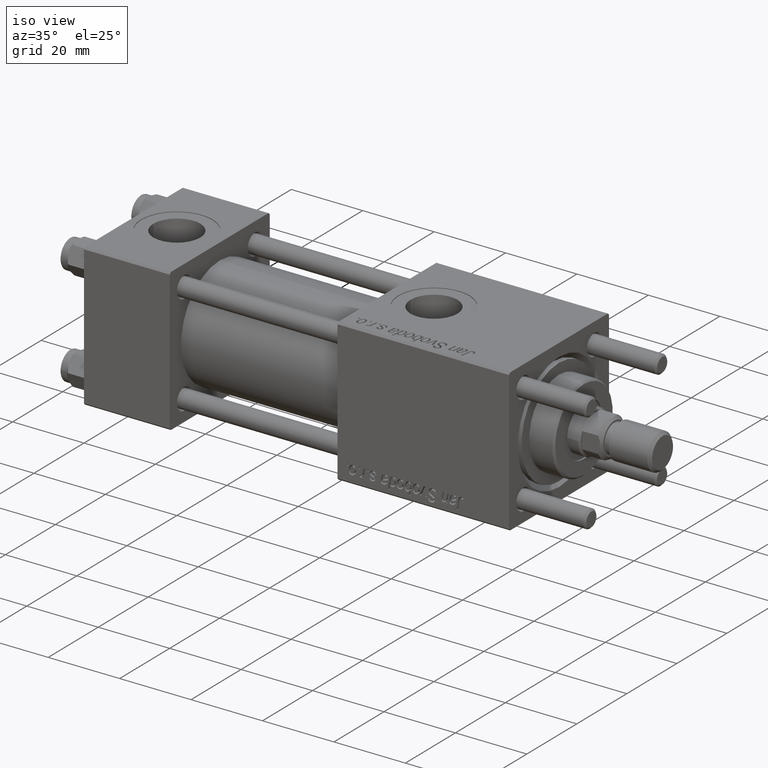
[diagram: clean part render]
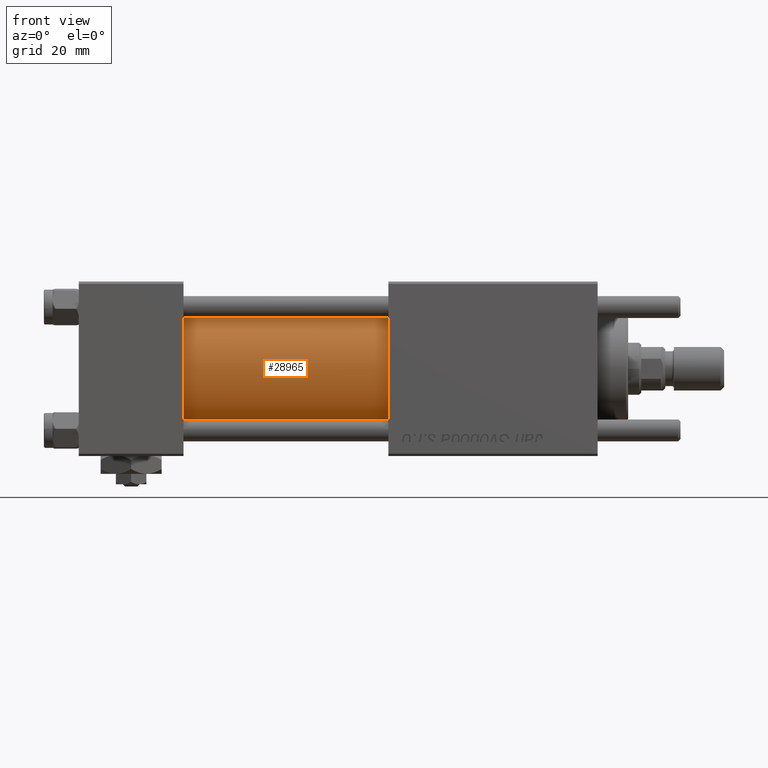
[diagram: tour spotlight — one face highlighted and labeled with its STEP entity id]
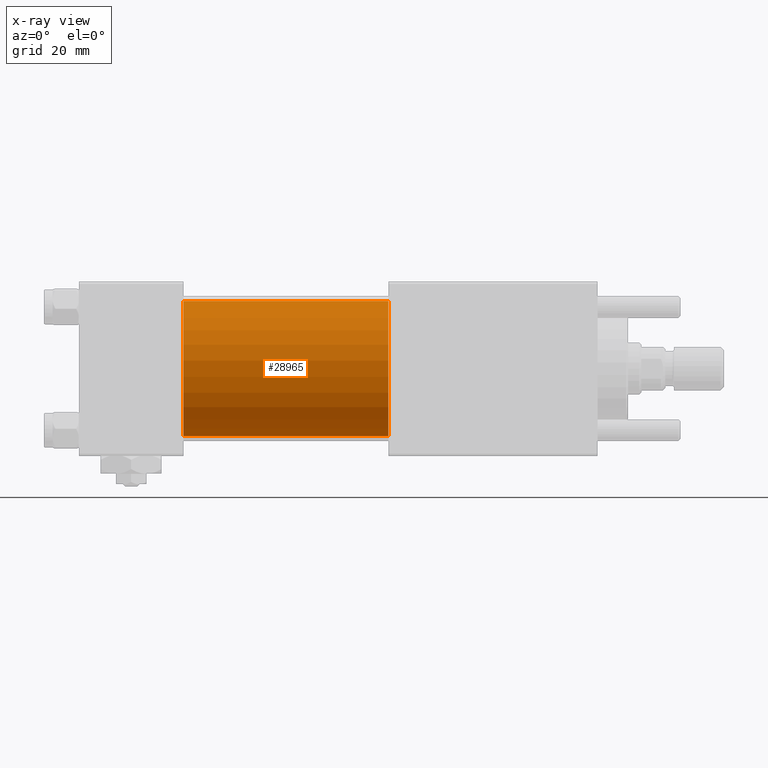
[diagram: x-ray of the same camera — body ghosted, this tour face saturated]
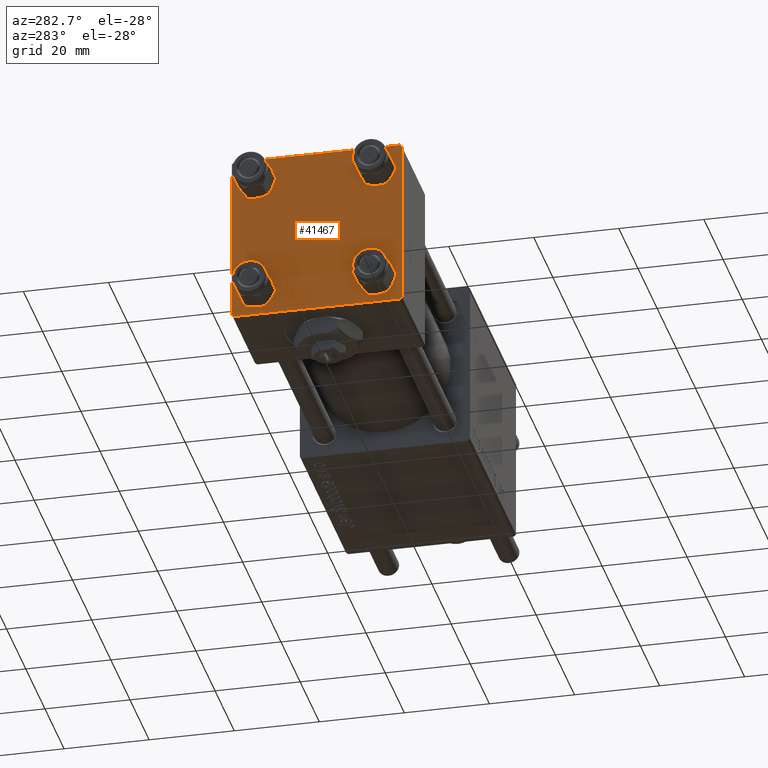
[diagram: tour spotlight — one face highlighted and labeled with its STEP entity id]
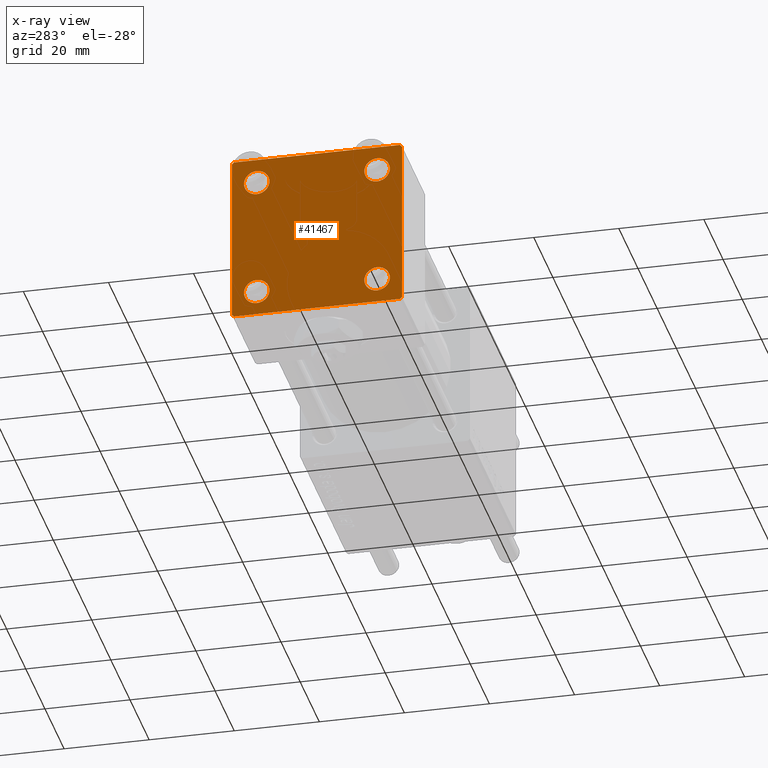
[diagram: x-ray of the same camera — body ghosted, this tour face saturated]
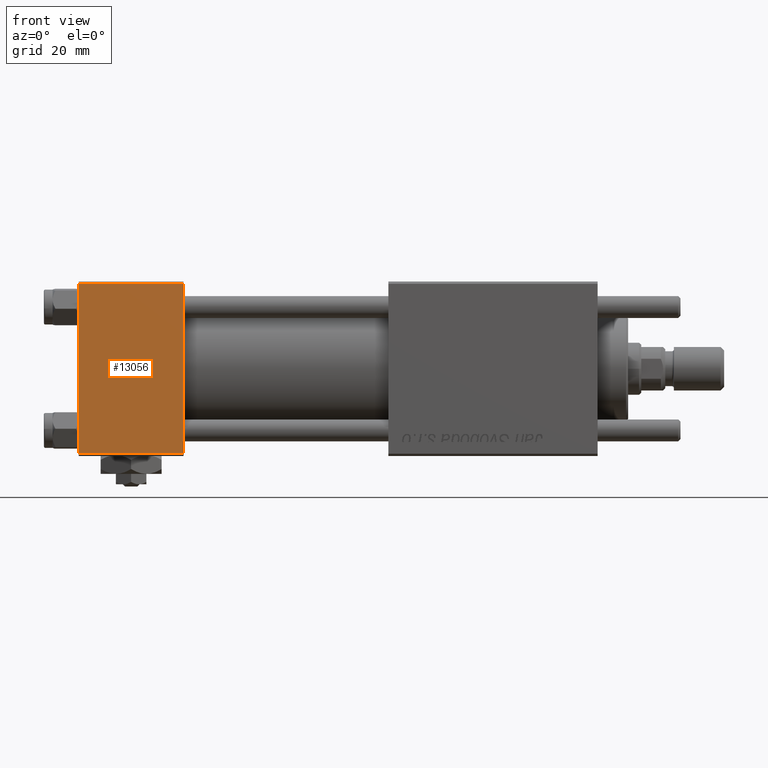
[diagram: tour spotlight — one face highlighted and labeled with its STEP entity id]
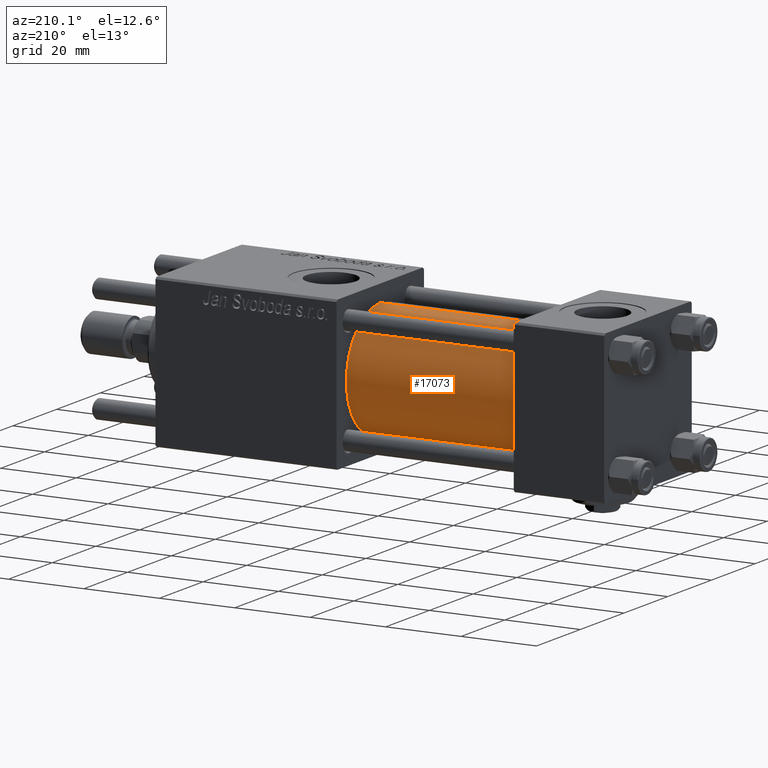
[diagram: tour spotlight — one face highlighted and labeled with its STEP entity id]
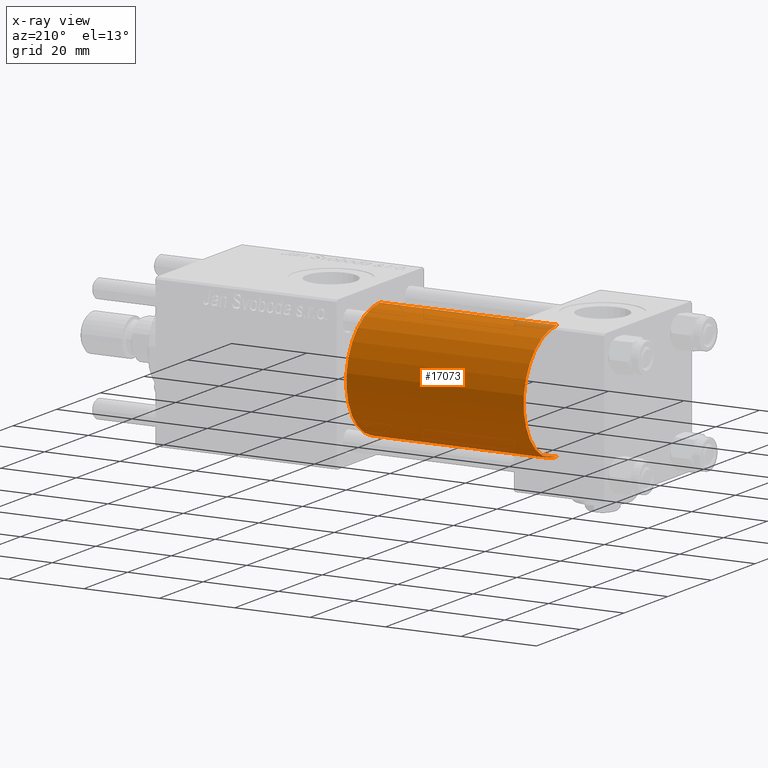
[diagram: x-ray of the same camera — body ghosted, this tour face saturated]
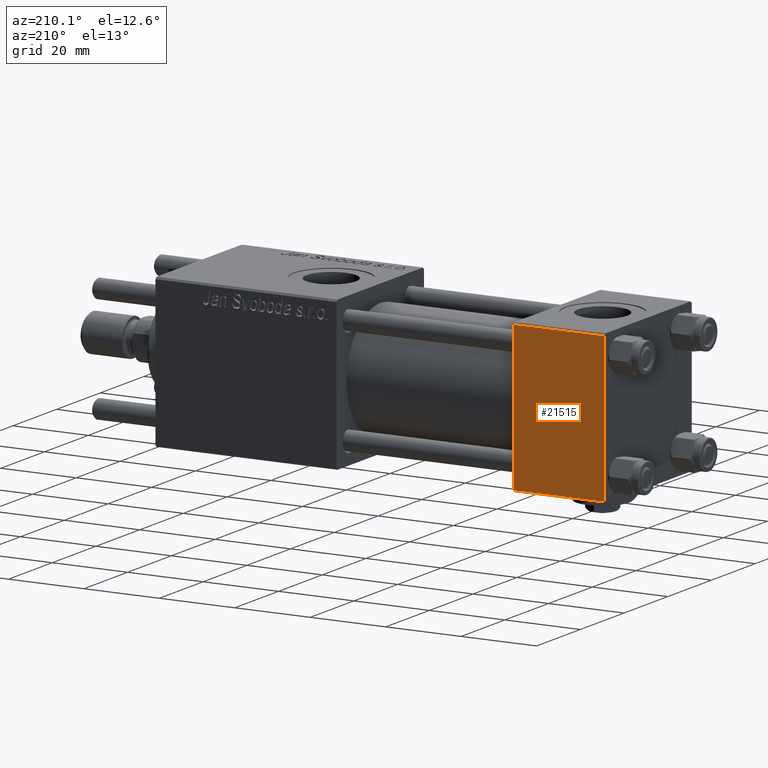
[diagram: tour spotlight — one face highlighted and labeled with its STEP entity id]
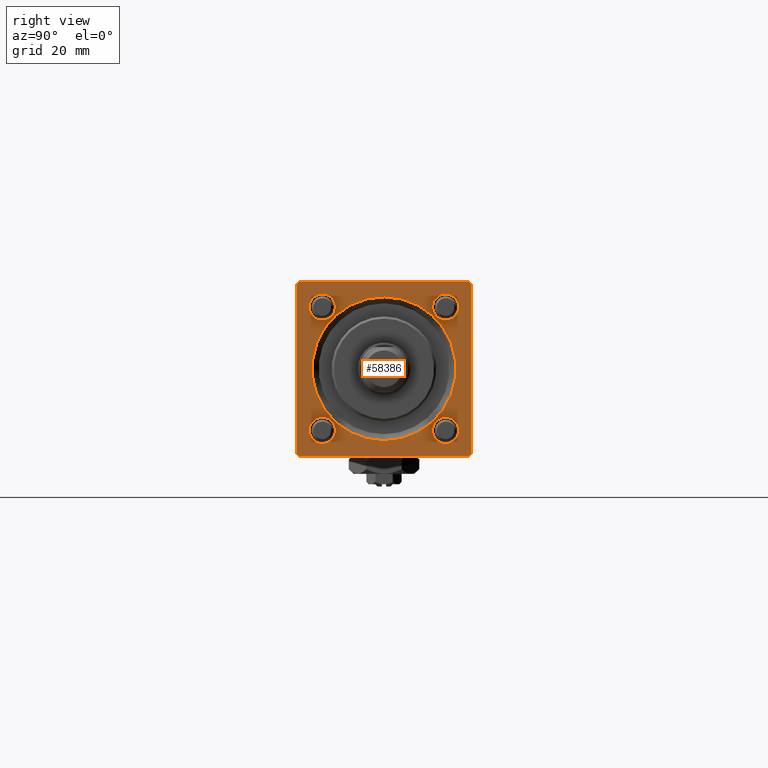
[diagram: tour spotlight — one face highlighted and labeled with its STEP entity id]
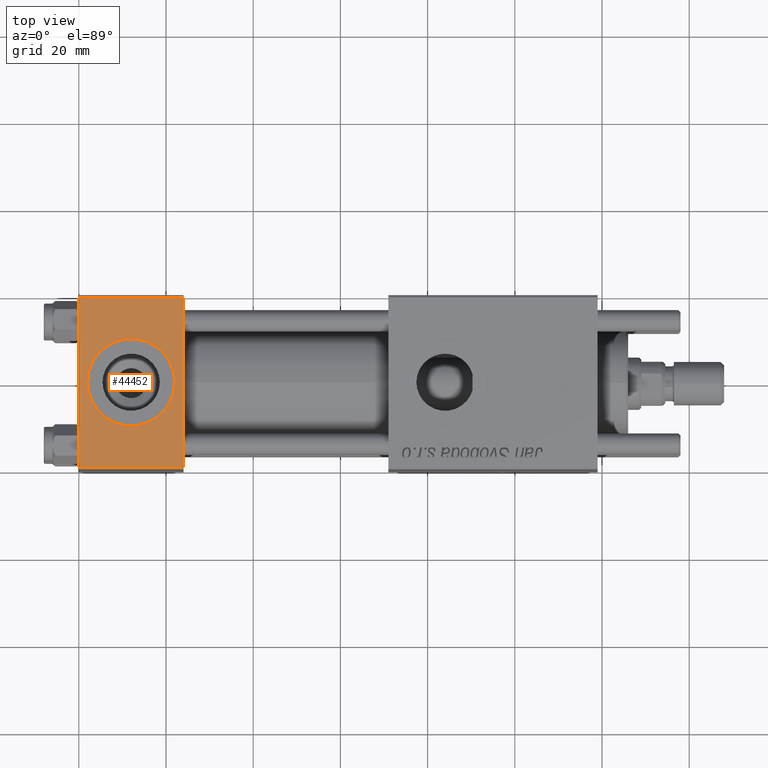
[diagram: tour spotlight — one face highlighted and labeled with its STEP entity id]
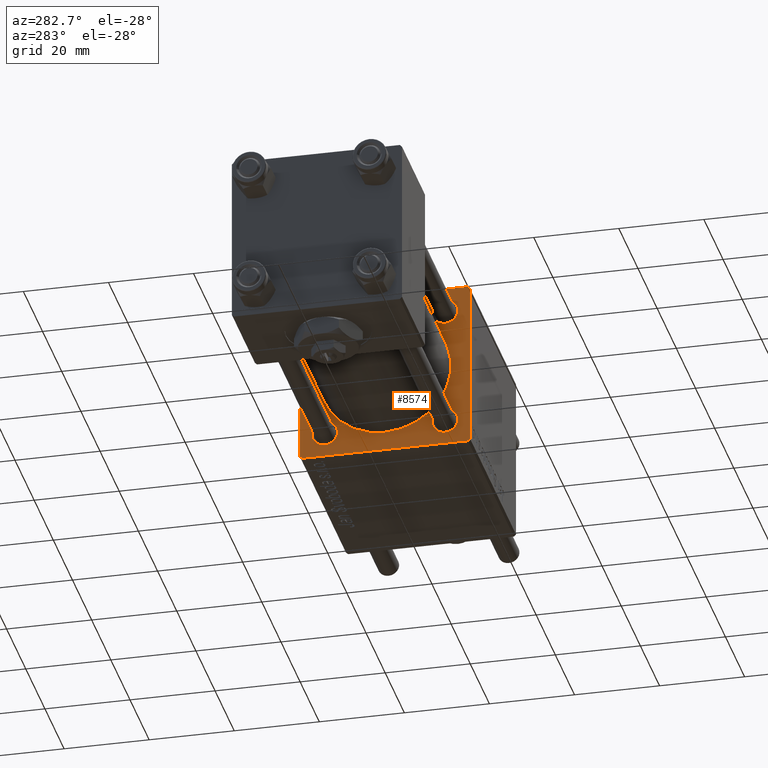
[diagram: tour spotlight — one face highlighted and labeled with its STEP entity id]
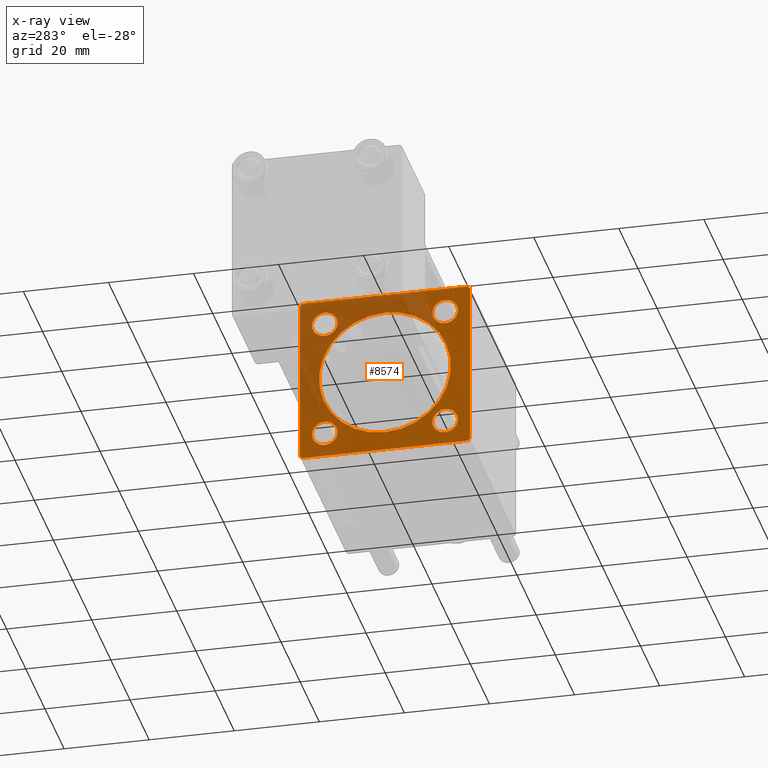
[diagram: x-ray of the same camera — body ghosted, this tour face saturated]
A machine part: a face-by-face anatomy tour. The part has 1222 B-rep faces; the first image is the clean iso view, then the 8 largest visible faces are spotlighted one at a time (largest first), each with its STEP entity span.

Face 1 — front view, entity #28965. An x-ray twin of the same camera follows (body ghosted, this face saturated) — the face is partly hidden behind the body. In plain terms, the highlighted cylindrical surface (partial cylindrical patch) has radius 15.5 mm, axis along (-1, -0, -0).
Definition (entity closure, byte-faithful):
#1339 = CARTESIAN_POINT ( 'NONE',  ( 71.00000000000001421, -2.602085213965210642E-15, 15.50000000000000000 ) ) ;
#2718 = DIRECTION ( 'NONE',  ( 1.000000000000000000, 0.000000000000000000, 0.000000000000000000 ) ) ;
#5259 = FACE_OUTER_BOUND ( 'NONE', #35144, .T. ) ;
#6089 = DIRECTION ( 'NONE',  ( -1.000000000000000000, -0.000000000000000000, -0.000000000000000000 ) ) ;
#6681 = CARTESIAN_POINT ( 'NONE',  ( 24.00000000000000000, -7.038826752868131828E-16, -15.50000000000000000 ) ) ;
#7223 = VERTEX_POINT ( 'NONE', #6681 ) ;
#7567 = CIRCLE ( 'NONE', #18019, 15.50000000000000000 ) ;
#7661 = ORIENTED_EDGE ( 'NONE', *, *, #48576, .T. ) ;
#8713 = DIRECTION ( 'NONE',  ( -1.000000000000000000, -0.000000000000000000, -0.000000000000000000 ) ) ;
#14473 = CARTESIAN_POINT ( 'NONE',  ( 71.00000000000001421, -2.602085213965210642E-15, 0.000000000000000000 ) ) ;
#15453 = VERTEX_POINT ( 'NONE', #1339 ) ;
#16614 = VERTEX_POINT ( 'NONE', #48935 ) ;
#18019 = AXIS2_PLACEMENT_3D ( 'NONE', #29254, #2718, #47692 ) ;
#21233 = CARTESIAN_POINT ( 'NONE',  ( 24.00000000000000000, -2.602085213965210642E-15, 15.50000000000000000 ) ) ;
#23709 = DIRECTION ( 'NONE',  ( 1.000000000000000000, 0.000000000000000000, 0.000000000000000000 ) ) ;
#25807 = EDGE_CURVE ( 'NONE', #15453, #36536, #52224, .T. ) ;
#26300 = CARTESIAN_POINT ( 'NONE',  ( 71.00000000000001421, -7.038826752868131828E-16, -15.50000000000000000 ) ) ;
#27929 = CYLINDRICAL_SURFACE ( 'NONE', #40744, 15.50000000000000000 ) ;
#28965 = ADVANCED_FACE ( 'NONE', ( #5259 ), #27929, .T. ) ;
#29103 = DIRECTION ( 'NONE',  ( 0.000000000000000000, 0.000000000000000000, 1.000000000000000000 ) ) ;
#29254 = CARTESIAN_POINT ( 'NONE',  ( 24.00000000000000000, -2.602085213965210642E-15, 0.000000000000000000 ) ) ;
#34537 = EDGE_CURVE ( 'NONE', #15453, #16614, #55202, .T. ) ;
#35144 = EDGE_LOOP ( 'NONE', ( #58803, #45131, #46040, #7661 ) ) ;
#36536 = VERTEX_POINT ( 'NONE', #21233 ) ;
#37311 = VECTOR ( 'NONE', #8713, 1000.000000000000000 ) ;
#37730 = DIRECTION ( 'NONE',  ( -1.000000000000000000, -0.000000000000000000, -0.000000000000000000 ) ) ;
#39568 = EDGE_CURVE ( 'NONE', #16614, #7223, #53382, .T. ) ;
#40744 = AXIS2_PLACEMENT_3D ( 'NONE', #41900, #37730, #29103 ) ;
#41900 = CARTESIAN_POINT ( 'NONE',  ( 71.00000000000001421, -2.602085213965210642E-15, 0.000000000000000000 ) ) ;
#43540 = DIRECTION ( 'NONE',  ( 0.000000000000000000, 0.000000000000000000, -1.000000000000000000 ) ) ;
#44731 = AXIS2_PLACEMENT_3D ( 'NONE', #14473, #23709, #43540 ) ;
#45131 = ORIENTED_EDGE ( 'NONE', *, *, #34537, .F. ) ;
#46040 = ORIENTED_EDGE ( 'NONE', *, *, #25807, .T. ) ;
#47692 = DIRECTION ( 'NONE',  ( 0.000000000000000000, 0.000000000000000000, 1.000000000000000000 ) ) ;
#47767 = CARTESIAN_POINT ( 'NONE',  ( 71.00000000000001421, -2.602085213965210642E-15, 15.50000000000000000 ) ) ;
#48576 = EDGE_CURVE ( 'NONE', #36536, #7223, #7567, .T. ) ;
#48935 = CARTESIAN_POINT ( 'NONE',  ( 71.00000000000001421, -7.038826752868131828E-16, -15.50000000000000000 ) ) ;
#52224 = LINE ( 'NONE', #47767, #53028 ) ;
#53028 = VECTOR ( 'NONE', #6089, 1000.000000000000000 ) ;
#53382 = LINE ( 'NONE', #26300, #37311 ) ;
#55202 = CIRCLE ( 'NONE', #44731, 15.50000000000000000 ) ;
#58803 = ORIENTED_EDGE ( 'NONE', *, *, #39568, .F. ) ;

Face 2 — auxiliary view, entity #41467. An x-ray twin of the same camera follows (body ghosted, this face saturated) — the face is partly hidden behind the body. In plain terms, the highlighted planar face has unit normal (-1, 0, 0).
Definition (entity closure, byte-faithful):
#91 = EDGE_CURVE ( 'NONE', #46056, #47784, #21739, .T. ) ;
#600 = VECTOR ( 'NONE', #40461, 999.9999999999998863 ) ;
#744 = AXIS2_PLACEMENT_3D ( 'NONE', #49555, #35292, #8180 ) ;
#1310 = VERTEX_POINT ( 'NONE', #28287 ) ;
#1437 = EDGE_LOOP ( 'NONE', ( #52029, #52704 ) ) ;
#1806 = ORIENTED_EDGE ( 'NONE', *, *, #47146, .T. ) ;
#2125 = CARTESIAN_POINT ( 'NONE',  ( 0.000000000000000000, 14.14999999999999858, -14.15000000000000036 ) ) ;
#2238 = FACE_BOUND ( 'NONE', #35941, .T. ) ;
#2575 = VECTOR ( 'NONE', #18628, 1000.000000000000000 ) ;
#2968 = DIRECTION ( 'NONE',  ( 1.000000000000000000, 0.000000000000000000, 0.000000000000000000 ) ) ;
#3607 = EDGE_CURVE ( 'NONE', #20213, #37891, #27559, .T. ) ;
#3610 = LINE ( 'NONE', #53356, #6402 ) ;
#4063 = CARTESIAN_POINT ( 'NONE',  ( 0.000000000000000000, 20.00000000000000000, 20.00000000000000000 ) ) ;
#4145 = DIRECTION ( 'NONE',  ( -0.000000000000000000, -0.7071067811865524577, -0.7071067811865426878 ) ) ;
#5819 = EDGE_CURVE ( 'NONE', #35577, #1310, #15524, .T. ) ;
#6138 = VERTEX_POINT ( 'NONE', #40421 ) ;
#6402 = VECTOR ( 'NONE', #53649, 1000.000000000000000 ) ;
#7019 = FACE_BOUND ( 'NONE', #53527, .T. ) ;
#7605 = CARTESIAN_POINT ( 'NONE',  ( 0.000000000000000000, 0.000000000000000000, 0.000000000000000000 ) ) ;
#7903 = VERTEX_POINT ( 'NONE', #32318 ) ;
#8024 = LINE ( 'NONE', #39871, #600 ) ;
#8180 = DIRECTION ( 'NONE',  ( 0.000000000000000000, 0.000000000000000000, 1.000000000000000000 ) ) ;
#8819 = CARTESIAN_POINT ( 'NONE',  ( 0.000000000000000000, -20.00000000000000355, 19.99999999999998934 ) ) ;
#8899 = ORIENTED_EDGE ( 'NONE', *, *, #18267, .T. ) ;
#9371 = CARTESIAN_POINT ( 'NONE',  ( 0.000000000000000000, 19.50000000000000000, 20.00000000000000000 ) ) ;
#9517 = ORIENTED_EDGE ( 'NONE', *, *, #38281, .F. ) ;
#9852 = VERTEX_POINT ( 'NONE', #14037 ) ;
#10076 = EDGE_CURVE ( 'NONE', #50064, #18889, #18447, .T. ) ;
#11308 = CARTESIAN_POINT ( 'NONE',  ( 0.000000000000000000, -14.14999999999999503, 14.15000000000000391 ) ) ;
#11318 = ORIENTED_EDGE ( 'NONE', *, *, #3607, .T. ) ;
#11763 = FACE_BOUND ( 'NONE', #58783, .T. ) ;
#12401 = DIRECTION ( 'NONE',  ( -0.000000000000000000, 0.7071067811865500152, 0.7071067811865451302 ) ) ;
#12799 = CARTESIAN_POINT ( 'NONE',  ( -0.000000000000000000, 19.74999999999986855, -19.75000000000014211 ) ) ;
#13516 = CARTESIAN_POINT ( 'NONE',  ( 0.000000000000000000, -14.14999999999999503, 11.15000000000002345 ) ) ;
#13546 = CARTESIAN_POINT ( 'NONE',  ( 0.000000000000000000, 14.14999999999999858, 14.15000000000000036 ) ) ;
#14037 = CARTESIAN_POINT ( 'NONE',  ( 0.000000000000000000, -19.50000000000000711, -20.00000000000000000 ) ) ;
#14097 = CIRCLE ( 'NONE', #20808, 2.999999999999983569 ) ;
#14187 = EDGE_LOOP ( 'NONE', ( #35806, #17503, #14859, #16996, #47107, #40713, #9517, #8899 ) ) ;
#14267 = CIRCLE ( 'NONE', #38033, 3.000000000000004441 ) ;
#14859 = ORIENTED_EDGE ( 'NONE', *, *, #20502, .T. ) ;
#15273 = VECTOR ( 'NONE', #4145, 1000.000000000000000 ) ;
#15276 = DIRECTION ( 'NONE',  ( 0.000000000000000000, -0.7071067811865401342, 0.7071067811865549002 ) ) ;
#15524 = LINE ( 'NONE', #12799, #15273 ) ;
#16740 = DIRECTION ( 'NONE',  ( 1.000000000000000000, 0.000000000000000000, 0.000000000000000000 ) ) ;
#16911 = AXIS2_PLACEMENT_3D ( 'NONE', #48284, #16740, #58130 ) ;
#16996 = ORIENTED_EDGE ( 'NONE', *, *, #50542, .T. ) ;
#17503 = ORIENTED_EDGE ( 'NONE', *, *, #5819, .T. ) ;
#17556 = EDGE_CURVE ( 'NONE', #58667, #29832, #21948, .T. ) ;
#17871 = CARTESIAN_POINT ( 'NONE',  ( 0.000000000000000000, -14.14999999999999503, 14.15000000000000391 ) ) ;
#18199 = CARTESIAN_POINT ( 'NONE',  ( 0.000000000000000000, 20.00000000000000000, 20.00000000000000000 ) ) ;
#18267 = EDGE_CURVE ( 'NONE', #47644, #6138, #8024, .T. ) ;
#18447 = CIRCLE ( 'NONE', #48838, 2.999999999999983569 ) ;
#18628 = DIRECTION ( 'NONE',  ( 0.000000000000000000, 8.673617379884036705E-17, -1.000000000000000000 ) ) ;
#18889 = VERTEX_POINT ( 'NONE', #28995 ) ;
#19220 = CARTESIAN_POINT ( 'NONE',  ( 0.000000000000000000, -19.49999999999999289, 19.99999999999998934 ) ) ;
#19720 = CIRCLE ( 'NONE', #51063, 2.999999999999983569 ) ;
#20099 = AXIS2_PLACEMENT_3D ( 'NONE', #7605, #20429, #57345 ) ;
#20213 = VERTEX_POINT ( 'NONE', #13516 ) ;
#20429 = DIRECTION ( 'NONE',  ( -1.000000000000000000, 0.000000000000000000, -0.000000000000000000 ) ) ;
#20502 = EDGE_CURVE ( 'NONE', #1310, #9852, #3610, .T. ) ;
#20780 = CARTESIAN_POINT ( 'NONE',  ( -0.000000000000000000, -19.74999999999992539, 19.75000000000006395 ) ) ;
#20808 = AXIS2_PLACEMENT_3D ( 'NONE', #17871, #35764, #25965 ) ;
#21114 = ORIENTED_EDGE ( 'NONE', *, *, #25119, .T. ) ;
#21739 = CIRCLE ( 'NONE', #744, 2.999999999999983569 ) ;
#21948 = LINE ( 'NONE', #20780, #31042 ) ;
#22828 = VERTEX_POINT ( 'NONE', #22950 ) ;
#22950 = CARTESIAN_POINT ( 'NONE',  ( 0.000000000000000000, -14.14999999999999503, -17.15000000000000924 ) ) ;
#24255 = EDGE_CURVE ( 'NONE', #58667, #7903, #45412, .T. ) ;
#25119 = EDGE_CURVE ( 'NONE', #18889, #50064, #19720, .T. ) ;
#25965 = DIRECTION ( 'NONE',  ( 0.000000000000000000, 0.000000000000000000, 1.000000000000000000 ) ) ;
#26160 = DIRECTION ( 'NONE',  ( 0.000000000000000000, 0.000000000000000000, 1.000000000000000000 ) ) ;
#26892 = EDGE_CURVE ( 'NONE', #57839, #22828, #34041, .T. ) ;
#27559 = CIRCLE ( 'NONE', #40848, 2.999999999999983569 ) ;
#28034 = LINE ( 'NONE', #18199, #50384 ) ;
#28287 = CARTESIAN_POINT ( 'NONE',  ( 0.000000000000000000, 19.50000000000000711, -20.00000000000000711 ) ) ;
#28699 = LINE ( 'NONE', #42960, #45620 ) ;
#28995 = CARTESIAN_POINT ( 'NONE',  ( 0.000000000000000000, 14.14999999999999858, -11.15000000000001812 ) ) ;
#29231 = CARTESIAN_POINT ( 'NONE',  ( 0.000000000000000000, 14.14999999999999858, -14.15000000000000036 ) ) ;
#29808 = DIRECTION ( 'NONE',  ( 0.000000000000000000, 0.000000000000000000, 1.000000000000000000 ) ) ;
#29832 = VERTEX_POINT ( 'NONE', #19220 ) ;
#30517 = CARTESIAN_POINT ( 'NONE',  ( 0.000000000000000000, -14.14999999999999503, -11.15000000000000036 ) ) ;
#30638 = DIRECTION ( 'NONE',  ( 1.000000000000000000, 0.000000000000000000, 0.000000000000000000 ) ) ;
#30889 = CARTESIAN_POINT ( 'NONE',  ( 0.000000000000000000, 14.14999999999999858, -17.14999999999998437 ) ) ;
#31042 = VECTOR ( 'NONE', #12401, 1000.000000000000114 ) ;
#31911 = CARTESIAN_POINT ( 'NONE',  ( 0.000000000000000000, -14.14999999999999503, 17.14999999999998792 ) ) ;
#31956 = CARTESIAN_POINT ( 'NONE',  ( 0.000000000000000000, 20.00000000000000000, -19.50000000000002132 ) ) ;
#32318 = CARTESIAN_POINT ( 'NONE',  ( 0.000000000000000000, -20.00000000000000000, -19.49999999999999645 ) ) ;
#33084 = EDGE_CURVE ( 'NONE', #22828, #57839, #14267, .T. ) ;
#33119 = DIRECTION ( 'NONE',  ( 0.000000000000000000, 0.000000000000000000, 1.000000000000000000 ) ) ;
#34041 = CIRCLE ( 'NONE', #16911, 3.000000000000004441 ) ;
#34714 = PLANE ( 'NONE',  #20099 ) ;
#35292 = DIRECTION ( 'NONE',  ( 1.000000000000000000, 0.000000000000000000, 0.000000000000000000 ) ) ;
#35577 = VERTEX_POINT ( 'NONE', #31956 ) ;
#35764 = DIRECTION ( 'NONE',  ( 1.000000000000000000, 0.000000000000000000, 0.000000000000000000 ) ) ;
#35806 = ORIENTED_EDGE ( 'NONE', *, *, #50740, .T. ) ;
#35941 = EDGE_LOOP ( 'NONE', ( #1806, #11318 ) ) ;
#36978 = ORIENTED_EDGE ( 'NONE', *, *, #45659, .T. ) ;
#37874 = CIRCLE ( 'NONE', #49250, 2.999999999999983569 ) ;
#37891 = VERTEX_POINT ( 'NONE', #31911 ) ;
#38033 = AXIS2_PLACEMENT_3D ( 'NONE', #52682, #52966, #53266 ) ;
#38281 = EDGE_CURVE ( 'NONE', #47644, #29832, #44865, .T. ) ;
#39176 = FACE_BOUND ( 'NONE', #1437, .T. ) ;
#39871 = CARTESIAN_POINT ( 'NONE',  ( -0.000000000000000000, 19.75000000000013500, 19.74999999999986144 ) ) ;
#40421 = CARTESIAN_POINT ( 'NONE',  ( 0.000000000000000000, 20.00000000000000000, 19.49999999999999289 ) ) ;
#40461 = DIRECTION ( 'NONE',  ( 0.000000000000000000, 0.7071067811865425767, -0.7071067811865525687 ) ) ;
#40713 = ORIENTED_EDGE ( 'NONE', *, *, #17556, .T. ) ;
#40848 = AXIS2_PLACEMENT_3D ( 'NONE', #11308, #2968, #29808 ) ;
#41467 = ADVANCED_FACE ( 'NONE', ( #2238, #39176, #11763, #7019, #47800 ), #34714, .T. ) ;
#42960 = CARTESIAN_POINT ( 'NONE',  ( 0.000000000000000000, -19.75000000000020961, -19.74999999999979394 ) ) ;
#43680 = CARTESIAN_POINT ( 'NONE',  ( 0.000000000000000000, -20.00000000000000355, 19.49999999999998224 ) ) ;
#43887 = CARTESIAN_POINT ( 'NONE',  ( 0.000000000000000000, 14.14999999999999858, 11.15000000000001990 ) ) ;
#44514 = DIRECTION ( 'NONE',  ( 1.000000000000000000, 0.000000000000000000, 0.000000000000000000 ) ) ;
#44865 = LINE ( 'NONE', #4063, #53411 ) ;
#45275 = DIRECTION ( 'NONE',  ( 0.000000000000000000, 0.000000000000000000, -1.000000000000000000 ) ) ;
#45412 = LINE ( 'NONE', #8819, #2575 ) ;
#45620 = VECTOR ( 'NONE', #15276, 1000.000000000000000 ) ;
#45659 = EDGE_CURVE ( 'NONE', #47784, #46056, #37874, .T. ) ;
#46056 = VERTEX_POINT ( 'NONE', #51481 ) ;
#47107 = ORIENTED_EDGE ( 'NONE', *, *, #24255, .F. ) ;
#47146 = EDGE_CURVE ( 'NONE', #37891, #20213, #14097, .T. ) ;
#47644 = VERTEX_POINT ( 'NONE', #9371 ) ;
#47784 = VERTEX_POINT ( 'NONE', #43887 ) ;
#47800 = FACE_OUTER_BOUND ( 'NONE', #14187, .T. ) ;
#48284 = CARTESIAN_POINT ( 'NONE',  ( 0.000000000000000000, -14.14999999999999503, -14.15000000000000391 ) ) ;
#48838 = AXIS2_PLACEMENT_3D ( 'NONE', #29231, #30638, #26160 ) ;
#49138 = ORIENTED_EDGE ( 'NONE', *, *, #91, .T. ) ;
#49250 = AXIS2_PLACEMENT_3D ( 'NONE', #13546, #44514, #57938 ) ;
#49555 = CARTESIAN_POINT ( 'NONE',  ( 0.000000000000000000, 14.14999999999999858, 14.15000000000000036 ) ) ;
#49908 = DIRECTION ( 'NONE',  ( 0.000000000000000000, -1.000000000000000000, -2.602085213965210149E-16 ) ) ;
#50064 = VERTEX_POINT ( 'NONE', #30889 ) ;
#50384 = VECTOR ( 'NONE', #45275, 1000.000000000000000 ) ;
#50542 = EDGE_CURVE ( 'NONE', #9852, #7903, #28699, .T. ) ;
#50740 = EDGE_CURVE ( 'NONE', #6138, #35577, #28034, .T. ) ;
#51063 = AXIS2_PLACEMENT_3D ( 'NONE', #2125, #52143, #33119 ) ;
#51481 = CARTESIAN_POINT ( 'NONE',  ( 0.000000000000000000, 14.14999999999999858, 17.14999999999998437 ) ) ;
#52029 = ORIENTED_EDGE ( 'NONE', *, *, #26892, .T. ) ;
#52143 = DIRECTION ( 'NONE',  ( 1.000000000000000000, 0.000000000000000000, 0.000000000000000000 ) ) ;
#52682 = CARTESIAN_POINT ( 'NONE',  ( 0.000000000000000000, -14.14999999999999503, -14.15000000000000391 ) ) ;
#52704 = ORIENTED_EDGE ( 'NONE', *, *, #33084, .T. ) ;
#52966 = DIRECTION ( 'NONE',  ( 1.000000000000000000, 0.000000000000000000, 0.000000000000000000 ) ) ;
#53266 = DIRECTION ( 'NONE',  ( 0.000000000000000000, 0.000000000000000000, 1.000000000000000000 ) ) ;
#53356 = CARTESIAN_POINT ( 'NONE',  ( 0.000000000000000000, 20.00000000000000000, -20.00000000000000711 ) ) ;
#53411 = VECTOR ( 'NONE', #49908, 1000.000000000000000 ) ;
#53527 = EDGE_LOOP ( 'NONE', ( #49138, #36978 ) ) ;
#53649 = DIRECTION ( 'NONE',  ( 0.000000000000000000, -1.000000000000000000, 1.734723475976807094E-16 ) ) ;
#56627 = ORIENTED_EDGE ( 'NONE', *, *, #10076, .T. ) ;
#57345 = DIRECTION ( 'NONE',  ( -0.000000000000000000, 0.000000000000000000, 1.000000000000000000 ) ) ;
#57839 = VERTEX_POINT ( 'NONE', #30517 ) ;
#57938 = DIRECTION ( 'NONE',  ( 0.000000000000000000, 0.000000000000000000, 1.000000000000000000 ) ) ;
#58130 = DIRECTION ( 'NONE',  ( 0.000000000000000000, 0.000000000000000000, 1.000000000000000000 ) ) ;
#58667 = VERTEX_POINT ( 'NONE', #43680 ) ;
#58783 = EDGE_LOOP ( 'NONE', ( #21114, #56627 ) ) ;

Face 3 — front view, entity #13056. In plain terms, the highlighted planar face has unit normal (0, 1, 0).
Definition (entity closure, byte-faithful):
#2575 = VECTOR ( 'NONE', #18628, 1000.000000000000000 ) ;
#3943 = ORIENTED_EDGE ( 'NONE', *, *, #17296, .T. ) ;
#5987 = ORIENTED_EDGE ( 'NONE', *, *, #21259, .F. ) ;
#7805 = EDGE_LOOP ( 'NONE', ( #40546, #46606, #5987, #3943 ) ) ;
#7903 = VERTEX_POINT ( 'NONE', #32318 ) ;
#8819 = CARTESIAN_POINT ( 'NONE',  ( 0.000000000000000000, -20.00000000000000355, 19.99999999999998934 ) ) ;
#12453 = CARTESIAN_POINT ( 'NONE',  ( 24.00000000000000000, -20.00000000000000355, 19.99999999999998934 ) ) ;
#13056 = ADVANCED_FACE ( 'NONE', ( #39562 ), #44595, .F. ) ;
#14010 = VECTOR ( 'NONE', #56968, 1000.000000000000000 ) ;
#17296 = EDGE_CURVE ( 'NONE', #31475, #58667, #57171, .T. ) ;
#18628 = DIRECTION ( 'NONE',  ( 0.000000000000000000, 8.673617379884036705E-17, -1.000000000000000000 ) ) ;
#21259 = EDGE_CURVE ( 'NONE', #31475, #24091, #47128, .T. ) ;
#22447 = VECTOR ( 'NONE', #36859, 1000.000000000000000 ) ;
#24091 = VERTEX_POINT ( 'NONE', #44261 ) ;
#24255 = EDGE_CURVE ( 'NONE', #58667, #7903, #45412, .T. ) ;
#26464 = DIRECTION ( 'NONE',  ( -0.000000000000000000, 1.000000000000000000, 8.673617379884036705E-17 ) ) ;
#31198 = DIRECTION ( 'NONE',  ( 1.000000000000000000, 0.000000000000000000, 0.000000000000000000 ) ) ;
#31475 = VERTEX_POINT ( 'NONE', #54738 ) ;
#32318 = CARTESIAN_POINT ( 'NONE',  ( 0.000000000000000000, -20.00000000000000000, -19.49999999999999645 ) ) ;
#36285 = VECTOR ( 'NONE', #31198, 1000.000000000000000 ) ;
#36859 = DIRECTION ( 'NONE',  ( -1.000000000000000000, 0.000000000000000000, 0.000000000000000000 ) ) ;
#37915 = CARTESIAN_POINT ( 'NONE',  ( 24.00000000000000000, -20.00000000000000355, 19.99999999999998934 ) ) ;
#38472 = AXIS2_PLACEMENT_3D ( 'NONE', #12453, #26464, #58328 ) ;
#39537 = CARTESIAN_POINT ( 'NONE',  ( 24.00000000000000000, -20.00000000000000000, -19.49999999999999645 ) ) ;
#39562 = FACE_OUTER_BOUND ( 'NONE', #7805, .T. ) ;
#40546 = ORIENTED_EDGE ( 'NONE', *, *, #24255, .T. ) ;
#43319 = EDGE_CURVE ( 'NONE', #7903, #24091, #44568, .T. ) ;
#43680 = CARTESIAN_POINT ( 'NONE',  ( 0.000000000000000000, -20.00000000000000355, 19.49999999999998224 ) ) ;
#44261 = CARTESIAN_POINT ( 'NONE',  ( 24.00000000000000000, -20.00000000000000000, -19.49999999999999645 ) ) ;
#44568 = LINE ( 'NONE', #39537, #36285 ) ;
#44595 = PLANE ( 'NONE',  #38472 ) ;
#45412 = LINE ( 'NONE', #8819, #2575 ) ;
#46606 = ORIENTED_EDGE ( 'NONE', *, *, #43319, .T. ) ;
#47128 = LINE ( 'NONE', #37915, #14010 ) ;
#49082 = CARTESIAN_POINT ( 'NONE',  ( 24.00000000000000000, -20.00000000000000355, 19.49999999999998224 ) ) ;
#54738 = CARTESIAN_POINT ( 'NONE',  ( 24.00000000000000000, -20.00000000000000355, 19.49999999999998224 ) ) ;
#56968 = DIRECTION ( 'NONE',  ( 0.000000000000000000, 8.673617379884036705E-17, -1.000000000000000000 ) ) ;
#57171 = LINE ( 'NONE', #49082, #22447 ) ;
#58328 = DIRECTION ( 'NONE',  ( 0.000000000000000000, -8.673617379884036705E-17, 1.000000000000000000 ) ) ;
#58667 = VERTEX_POINT ( 'NONE', #43680 ) ;

Face 4 — auxiliary view, entity #17073. An x-ray twin of the same camera follows (body ghosted, this face saturated) — the face is partly hidden behind the body. In plain terms, the highlighted cylindrical surface (partial cylindrical patch) has radius 15.5 mm, axis along (-1, -0, -0).
Definition (entity closure, byte-faithful):
#551 = EDGE_LOOP ( 'NONE', ( #26496, #35959, #28071, #58387 ) ) ;
#1339 = CARTESIAN_POINT ( 'NONE',  ( 71.00000000000001421, -2.602085213965210642E-15, 15.50000000000000000 ) ) ;
#1475 = DIRECTION ( 'NONE',  ( -1.000000000000000000, -0.000000000000000000, -0.000000000000000000 ) ) ;
#2361 = DIRECTION ( 'NONE',  ( 0.000000000000000000, 0.000000000000000000, 1.000000000000000000 ) ) ;
#6089 = DIRECTION ( 'NONE',  ( -1.000000000000000000, -0.000000000000000000, -0.000000000000000000 ) ) ;
#6681 = CARTESIAN_POINT ( 'NONE',  ( 24.00000000000000000, -7.038826752868131828E-16, -15.50000000000000000 ) ) ;
#7223 = VERTEX_POINT ( 'NONE', #6681 ) ;
#8713 = DIRECTION ( 'NONE',  ( -1.000000000000000000, -0.000000000000000000, -0.000000000000000000 ) ) ;
#11516 = DIRECTION ( 'NONE',  ( 0.000000000000000000, 0.000000000000000000, -1.000000000000000000 ) ) ;
#13819 = EDGE_CURVE ( 'NONE', #16614, #15453, #46060, .T. ) ;
#15453 = VERTEX_POINT ( 'NONE', #1339 ) ;
#15770 = CYLINDRICAL_SURFACE ( 'NONE', #51927, 15.50000000000000000 ) ;
#16614 = VERTEX_POINT ( 'NONE', #48935 ) ;
#17073 = ADVANCED_FACE ( 'NONE', ( #42872 ), #15770, .T. ) ;
#20418 = AXIS2_PLACEMENT_3D ( 'NONE', #47541, #29709, #11516 ) ;
#21233 = CARTESIAN_POINT ( 'NONE',  ( 24.00000000000000000, -2.602085213965210642E-15, 15.50000000000000000 ) ) ;
#25807 = EDGE_CURVE ( 'NONE', #15453, #36536, #52224, .T. ) ;
#26300 = CARTESIAN_POINT ( 'NONE',  ( 71.00000000000001421, -7.038826752868131828E-16, -15.50000000000000000 ) ) ;
#26496 = ORIENTED_EDGE ( 'NONE', *, *, #13819, .F. ) ;
#28071 = ORIENTED_EDGE ( 'NONE', *, *, #29158, .T. ) ;
#29158 = EDGE_CURVE ( 'NONE', #7223, #36536, #33146, .T. ) ;
#29709 = DIRECTION ( 'NONE',  ( 1.000000000000000000, 0.000000000000000000, 0.000000000000000000 ) ) ;
#33146 = CIRCLE ( 'NONE', #37903, 15.50000000000000000 ) ;
#35959 = ORIENTED_EDGE ( 'NONE', *, *, #39568, .T. ) ;
#36536 = VERTEX_POINT ( 'NONE', #21233 ) ;
#37311 = VECTOR ( 'NONE', #8713, 1000.000000000000000 ) ;
#37903 = AXIS2_PLACEMENT_3D ( 'NONE', #55748, #43226, #38757 ) ;
#38757 = DIRECTION ( 'NONE',  ( 0.000000000000000000, 0.000000000000000000, 1.000000000000000000 ) ) ;
#39568 = EDGE_CURVE ( 'NONE', #16614, #7223, #53382, .T. ) ;
#42872 = FACE_OUTER_BOUND ( 'NONE', #551, .T. ) ;
#43226 = DIRECTION ( 'NONE',  ( 1.000000000000000000, 0.000000000000000000, 0.000000000000000000 ) ) ;
#46060 = CIRCLE ( 'NONE', #20418, 15.50000000000000000 ) ;
#47541 = CARTESIAN_POINT ( 'NONE',  ( 71.00000000000001421, -2.602085213965210642E-15, 0.000000000000000000 ) ) ;
#47767 = CARTESIAN_POINT ( 'NONE',  ( 71.00000000000001421, -2.602085213965210642E-15, 15.50000000000000000 ) ) ;
#48935 = CARTESIAN_POINT ( 'NONE',  ( 71.00000000000001421, -7.038826752868131828E-16, -15.50000000000000000 ) ) ;
#51927 = AXIS2_PLACEMENT_3D ( 'NONE', #56863, #1475, #2361 ) ;
#52224 = LINE ( 'NONE', #47767, #53028 ) ;
#53028 = VECTOR ( 'NONE', #6089, 1000.000000000000000 ) ;
#53382 = LINE ( 'NONE', #26300, #37311 ) ;
#55748 = CARTESIAN_POINT ( 'NONE',  ( 24.00000000000000000, -2.602085213965210642E-15, 0.000000000000000000 ) ) ;
#56863 = CARTESIAN_POINT ( 'NONE',  ( 71.00000000000001421, -2.602085213965210642E-15, 0.000000000000000000 ) ) ;
#58387 = ORIENTED_EDGE ( 'NONE', *, *, #25807, .F. ) ;

Face 5 — auxiliary view, entity #21515. In plain terms, the highlighted planar face has unit normal (0, 1, 0).
Definition (entity closure, byte-faithful):
#1218 = PLANE ( 'NONE',  #8366 ) ;
#3590 = EDGE_CURVE ( 'NONE', #6138, #33069, #11617, .T. ) ;
#3774 = VECTOR ( 'NONE', #34565, 1000.000000000000000 ) ;
#4651 = VERTEX_POINT ( 'NONE', #12428 ) ;
#6138 = VERTEX_POINT ( 'NONE', #40421 ) ;
#8080 = CARTESIAN_POINT ( 'NONE',  ( 24.00000000000000000, 20.00000000000000000, -19.50000000000002132 ) ) ;
#8366 = AXIS2_PLACEMENT_3D ( 'NONE', #48827, #56895, #30103 ) ;
#8946 = DIRECTION ( 'NONE',  ( -1.000000000000000000, 0.000000000000000000, 0.000000000000000000 ) ) ;
#11617 = LINE ( 'NONE', #43765, #3774 ) ;
#11748 = CARTESIAN_POINT ( 'NONE',  ( 24.00000000000000000, 20.00000000000000000, 20.00000000000000000 ) ) ;
#12428 = CARTESIAN_POINT ( 'NONE',  ( 24.00000000000000000, 20.00000000000000000, -19.50000000000002132 ) ) ;
#15573 = EDGE_CURVE ( 'NONE', #33069, #4651, #52544, .T. ) ;
#18199 = CARTESIAN_POINT ( 'NONE',  ( 0.000000000000000000, 20.00000000000000000, 20.00000000000000000 ) ) ;
#18210 = ORIENTED_EDGE ( 'NONE', *, *, #15573, .T. ) ;
#21515 = ADVANCED_FACE ( 'NONE', ( #50938 ), #1218, .T. ) ;
#22459 = EDGE_LOOP ( 'NONE', ( #18210, #35719, #25425, #45012 ) ) ;
#22758 = EDGE_CURVE ( 'NONE', #4651, #35577, #31016, .T. ) ;
#25425 = ORIENTED_EDGE ( 'NONE', *, *, #50740, .F. ) ;
#28034 = LINE ( 'NONE', #18199, #50384 ) ;
#30103 = DIRECTION ( 'NONE',  ( 0.000000000000000000, -0.000000000000000000, 1.000000000000000000 ) ) ;
#30669 = CARTESIAN_POINT ( 'NONE',  ( 24.00000000000000000, 20.00000000000000000, 19.49999999999999289 ) ) ;
#31016 = LINE ( 'NONE', #8080, #35965 ) ;
#31956 = CARTESIAN_POINT ( 'NONE',  ( 0.000000000000000000, 20.00000000000000000, -19.50000000000002132 ) ) ;
#33069 = VERTEX_POINT ( 'NONE', #30669 ) ;
#34565 = DIRECTION ( 'NONE',  ( 1.000000000000000000, 0.000000000000000000, 0.000000000000000000 ) ) ;
#35577 = VERTEX_POINT ( 'NONE', #31956 ) ;
#35719 = ORIENTED_EDGE ( 'NONE', *, *, #22758, .T. ) ;
#35965 = VECTOR ( 'NONE', #8946, 1000.000000000000000 ) ;
#40421 = CARTESIAN_POINT ( 'NONE',  ( 0.000000000000000000, 20.00000000000000000, 19.49999999999999289 ) ) ;
#43765 = CARTESIAN_POINT ( 'NONE',  ( 24.00000000000000000, 20.00000000000000000, 19.49999999999999289 ) ) ;
#45012 = ORIENTED_EDGE ( 'NONE', *, *, #3590, .T. ) ;
#45275 = DIRECTION ( 'NONE',  ( 0.000000000000000000, 0.000000000000000000, -1.000000000000000000 ) ) ;
#48827 = CARTESIAN_POINT ( 'NONE',  ( 24.00000000000000000, 20.00000000000000000, 20.00000000000000000 ) ) ;
#50384 = VECTOR ( 'NONE', #45275, 1000.000000000000000 ) ;
#50740 = EDGE_CURVE ( 'NONE', #6138, #35577, #28034, .T. ) ;
#50938 = FACE_OUTER_BOUND ( 'NONE', #22459, .T. ) ;
#52243 = DIRECTION ( 'NONE',  ( 0.000000000000000000, 0.000000000000000000, -1.000000000000000000 ) ) ;
#52544 = LINE ( 'NONE', #11748, #56666 ) ;
#56666 = VECTOR ( 'NONE', #52243, 1000.000000000000000 ) ;
#56895 = DIRECTION ( 'NONE',  ( -0.000000000000000000, 1.000000000000000000, 0.000000000000000000 ) ) ;

Face 6 — right view, entity #58386. In plain terms, the highlighted planar face has unit normal (-1, 0, 0).
Definition (entity closure, byte-faithful):
#10 = CIRCLE ( 'NONE', #6672, 3.000000000000000888 ) ;
#466 = ORIENTED_EDGE ( 'NONE', *, *, #50706, .T. ) ;
#562 = EDGE_LOOP ( 'NONE', ( #38338, #22498 ) ) ;
#711 = DIRECTION ( 'NONE',  ( -0.000000000000000000, -0.7071067811865573427, -0.7071067811865376918 ) ) ;
#825 = ORIENTED_EDGE ( 'NONE', *, *, #4469, .T. ) ;
#896 = CIRCLE ( 'NONE', #20886, 2.999999999999973355 ) ;
#959 = VERTEX_POINT ( 'NONE', #30489 ) ;
#1973 = VECTOR ( 'NONE', #55311, 1000.000000000000114 ) ;
#2086 = VERTEX_POINT ( 'NONE', #8869 ) ;
#2257 = EDGE_CURVE ( 'NONE', #29150, #58518, #55094, .T. ) ;
#2443 = DIRECTION ( 'NONE',  ( 0.000000000000000000, 0.000000000000000000, 1.000000000000000000 ) ) ;
#2558 = EDGE_LOOP ( 'NONE', ( #47274, #32275 ) ) ;
#2858 = CIRCLE ( 'NONE', #33302, 16.50000000000001421 ) ;
#3034 = CARTESIAN_POINT ( 'NONE',  ( 119.0000000000000142, -19.50000000000002487, -20.00000000000000000 ) ) ;
#3073 = CARTESIAN_POINT ( 'NONE',  ( 119.0000000000000142, 19.99999999999999645, 20.00000000000000000 ) ) ;
#3883 = AXIS2_PLACEMENT_3D ( 'NONE', #39293, #38697, #56867 ) ;
#4469 = EDGE_CURVE ( 'NONE', #14777, #26429, #17842, .T. ) ;
#5556 = EDGE_CURVE ( 'NONE', #21044, #58096, #2858, .T. ) ;
#6161 = VECTOR ( 'NONE', #6973, 1000.000000000000000 ) ;
#6672 = AXIS2_PLACEMENT_3D ( 'NONE', #22137, #26608, #53971 ) ;
#6687 = VECTOR ( 'NONE', #13082, 999.9999999999998863 ) ;
#6973 = DIRECTION ( 'NONE',  ( 0.000000000000000000, -1.000000000000000000, -8.673617379884035472E-17 ) ) ;
#7152 = EDGE_CURVE ( 'NONE', #959, #2086, #36773, .T. ) ;
#7424 = FACE_BOUND ( 'NONE', #562, .T. ) ;
#7811 = DIRECTION ( 'NONE',  ( 0.000000000000000000, 0.7071067811865376918, -0.7071067811865574537 ) ) ;
#8458 = DIRECTION ( 'NONE',  ( -1.000000000000000000, -0.000000000000000000, -0.000000000000000000 ) ) ;
#8693 = CIRCLE ( 'NONE', #41983, 16.50000000000001421 ) ;
#8848 = ORIENTED_EDGE ( 'NONE', *, *, #37713, .T. ) ;
#8869 = CARTESIAN_POINT ( 'NONE',  ( 119.0000000000000142, -20.00000000000000355, 19.50000000000002487 ) ) ;
#9748 = CARTESIAN_POINT ( 'NONE',  ( 119.0000000000000142, 19.99999999999999645, -19.50000000000000000 ) ) ;
#10225 = DIRECTION ( 'NONE',  ( -1.000000000000000000, -0.000000000000000000, -0.000000000000000000 ) ) ;
#11089 = DIRECTION ( 'NONE',  ( 0.000000000000000000, 8.673617379884036705E-17, -1.000000000000000000 ) ) ;
#11601 = FACE_OUTER_BOUND ( 'NONE', #56297, .T. ) ;
#12123 = DIRECTION ( 'NONE',  ( 0.000000000000000000, 0.000000000000000000, 1.000000000000000000 ) ) ;
#12195 = DIRECTION ( 'NONE',  ( 0.000000000000000000, 0.000000000000000000, 1.000000000000000000 ) ) ;
#12534 = EDGE_CURVE ( 'NONE', #26429, #959, #38529, .T. ) ;
#12721 = CARTESIAN_POINT ( 'NONE',  ( 119.0000000000000142, 19.99999999999999645, -19.50000000000000000 ) ) ;
#12822 = CARTESIAN_POINT ( 'NONE',  ( 119.0000000000000142, 14.15000000000000036, 11.14999999999999858 ) ) ;
#12921 = CARTESIAN_POINT ( 'NONE',  ( 119.0000000000000142, -14.15000000000000036, 14.15000000000000036 ) ) ;
#12963 = AXIS2_PLACEMENT_3D ( 'NONE', #56948, #52761, #2443 ) ;
#13082 = DIRECTION ( 'NONE',  ( 0.000000000000000000, -0.7071067811865574537, 0.7071067811865376918 ) ) ;
#13257 = ORIENTED_EDGE ( 'NONE', *, *, #34552, .T. ) ;
#13846 = VECTOR ( 'NONE', #19528, 1000.000000000000000 ) ;
#13884 = CIRCLE ( 'NONE', #12963, 3.000000000000004441 ) ;
#14526 = AXIS2_PLACEMENT_3D ( 'NONE', #57765, #44345, #12195 ) ;
#14658 = CARTESIAN_POINT ( 'NONE',  ( 119.0000000000000142, -14.15000000000000036, -11.14999999999999680 ) ) ;
#14777 = VERTEX_POINT ( 'NONE', #28167 ) ;
#14882 = EDGE_CURVE ( 'NONE', #14777, #52638, #20698, .T. ) ;
#15422 = VERTEX_POINT ( 'NONE', #41264 ) ;
#15533 = EDGE_CURVE ( 'NONE', #40469, #56226, #56136, .T. ) ;
#16781 = CARTESIAN_POINT ( 'NONE',  ( 119.0000000000000142, -14.15000000000000036, 11.15000000000002700 ) ) ;
#17220 = VECTOR ( 'NONE', #711, 1000.000000000000114 ) ;
#17764 = EDGE_CURVE ( 'NONE', #56729, #15422, #13884, .T. ) ;
#17842 = LINE ( 'NONE', #36311, #6687 ) ;
#18166 = CARTESIAN_POINT ( 'NONE',  ( 119.0000000000000142, -19.50000000000002487, -20.00000000000000000 ) ) ;
#19475 = DIRECTION ( 'NONE',  ( 0.000000000000000000, 0.000000000000000000, 1.000000000000000000 ) ) ;
#19528 = DIRECTION ( 'NONE',  ( 0.000000000000000000, -1.000000000000000000, 0.000000000000000000 ) ) ;
#19842 = ORIENTED_EDGE ( 'NONE', *, *, #55995, .T. ) ;
#20698 = LINE ( 'NONE', #34403, #47088 ) ;
#20886 = AXIS2_PLACEMENT_3D ( 'NONE', #12921, #8458, #43612 ) ;
#21044 = VERTEX_POINT ( 'NONE', #40335 ) ;
#21971 = ORIENTED_EDGE ( 'NONE', *, *, #28661, .T. ) ;
#22067 = CARTESIAN_POINT ( 'NONE',  ( 119.0000000000000142, 14.15000000000000036, 14.15000000000000036 ) ) ;
#22137 = CARTESIAN_POINT ( 'NONE',  ( 119.0000000000000142, 14.15000000000000036, 14.15000000000000036 ) ) ;
#22498 = ORIENTED_EDGE ( 'NONE', *, *, #2257, .T. ) ;
#22901 = ORIENTED_EDGE ( 'NONE', *, *, #12534, .T. ) ;
#23221 = DIRECTION ( 'NONE',  ( 0.000000000000000000, 0.000000000000000000, 1.000000000000000000 ) ) ;
#23465 = CARTESIAN_POINT ( 'NONE',  ( 119.0000000000000142, 14.15000000000000036, 17.15000000000000568 ) ) ;
#23775 = CARTESIAN_POINT ( 'NONE',  ( 119.0000000000000142, -14.15000000000000036, -17.15000000000000568 ) ) ;
#23981 = CIRCLE ( 'NONE', #47717, 3.000000000000004441 ) ;
#24014 = DIRECTION ( 'NONE',  ( -1.000000000000000000, -0.000000000000000000, -0.000000000000000000 ) ) ;
#24412 = ORIENTED_EDGE ( 'NONE', *, *, #5556, .T. ) ;
#24472 = EDGE_LOOP ( 'NONE', ( #13257, #26799 ) ) ;
#24521 = CARTESIAN_POINT ( 'NONE',  ( 119.0000000000000142, -20.00000000000000355, 19.99999999999999645 ) ) ;
#24575 = AXIS2_PLACEMENT_3D ( 'NONE', #22067, #35752, #23221 ) ;
#24588 = CARTESIAN_POINT ( 'NONE',  ( 119.0000000000000142, 19.99999999999999645, -20.00000000000000000 ) ) ;
#25564 = DIRECTION ( 'NONE',  ( -1.000000000000000000, -0.000000000000000000, -0.000000000000000000 ) ) ;
#25687 = CARTESIAN_POINT ( 'NONE',  ( 119.0000000000000142, 2.020667218593134678E-15, 16.50000000000001421 ) ) ;
#25880 = DIRECTION ( 'NONE',  ( 0.000000000000000000, 0.000000000000000000, 1.000000000000000000 ) ) ;
#26429 = VERTEX_POINT ( 'NONE', #43742 ) ;
#26608 = DIRECTION ( 'NONE',  ( -1.000000000000000000, -0.000000000000000000, -0.000000000000000000 ) ) ;
#26699 = CARTESIAN_POINT ( 'NONE',  ( 119.0000000000000142, -14.15000000000000036, 17.14999999999997726 ) ) ;
#26799 = ORIENTED_EDGE ( 'NONE', *, *, #17764, .T. ) ;
#27300 = ORIENTED_EDGE ( 'NONE', *, *, #41759, .T. ) ;
#27828 = CARTESIAN_POINT ( 'NONE',  ( 119.0000000000000142, 0.000000000000000000, 0.000000000000000000 ) ) ;
#28167 = CARTESIAN_POINT ( 'NONE',  ( 119.0000000000000142, 19.99999999999999645, 19.49999999999998579 ) ) ;
#28528 = DIRECTION ( 'NONE',  ( -1.000000000000000000, -0.000000000000000000, -0.000000000000000000 ) ) ;
#28661 = EDGE_CURVE ( 'NONE', #29284, #36139, #50207, .T. ) ;
#29150 = VERTEX_POINT ( 'NONE', #14658 ) ;
#29284 = VERTEX_POINT ( 'NONE', #12822 ) ;
#29494 = FACE_BOUND ( 'NONE', #2558, .T. ) ;
#30489 = CARTESIAN_POINT ( 'NONE',  ( 119.0000000000000142, -19.50000000000001776, 19.99999999999999645 ) ) ;
#31843 = EDGE_CURVE ( 'NONE', #42778, #47651, #896, .T. ) ;
#32275 = ORIENTED_EDGE ( 'NONE', *, *, #40955, .T. ) ;
#33302 = AXIS2_PLACEMENT_3D ( 'NONE', #43425, #40137, #25880 ) ;
#34275 = EDGE_LOOP ( 'NONE', ( #21971, #19842 ) ) ;
#34311 = CIRCLE ( 'NONE', #40913, 3.000000000000004441 ) ;
#34403 = CARTESIAN_POINT ( 'NONE',  ( 119.0000000000000142, 19.99999999999999645, 20.00000000000000000 ) ) ;
#34501 = CARTESIAN_POINT ( 'NONE',  ( 119.0000000000000142, -14.15000000000000036, -14.15000000000000036 ) ) ;
#34552 = EDGE_CURVE ( 'NONE', #15422, #56729, #34311, .T. ) ;
#35601 = ORIENTED_EDGE ( 'NONE', *, *, #7152, .T. ) ;
#35752 = DIRECTION ( 'NONE',  ( -1.000000000000000000, -0.000000000000000000, -0.000000000000000000 ) ) ;
#36139 = VERTEX_POINT ( 'NONE', #23465 ) ;
#36311 = CARTESIAN_POINT ( 'NONE',  ( 119.0000000000000142, 19.49999999999996803, 20.00000000000000000 ) ) ;
#36441 = EDGE_LOOP ( 'NONE', ( #24412, #27300 ) ) ;
#36773 = LINE ( 'NONE', #46577, #17220 ) ;
#37398 = DIRECTION ( 'NONE',  ( 0.000000000000000000, 0.000000000000000000, 1.000000000000000000 ) ) ;
#37713 = EDGE_CURVE ( 'NONE', #2086, #55656, #39097, .T. ) ;
#38021 = EDGE_CURVE ( 'NONE', #58518, #29150, #23981, .T. ) ;
#38116 = FACE_BOUND ( 'NONE', #34275, .T. ) ;
#38318 = CARTESIAN_POINT ( 'NONE',  ( 119.0000000000000142, -14.15000000000000036, -14.15000000000000036 ) ) ;
#38338 = ORIENTED_EDGE ( 'NONE', *, *, #38021, .T. ) ;
#38403 = FACE_BOUND ( 'NONE', #24472, .T. ) ;
#38529 = LINE ( 'NONE', #3073, #6161 ) ;
#38697 = DIRECTION ( 'NONE',  ( -1.000000000000000000, 0.000000000000000000, -0.000000000000000000 ) ) ;
#39097 = LINE ( 'NONE', #24521, #50554 ) ;
#39293 = CARTESIAN_POINT ( 'NONE',  ( 119.0000000000000142, 0.000000000000000000, 0.000000000000000000 ) ) ;
#40137 = DIRECTION ( 'NONE',  ( -1.000000000000000000, -0.000000000000000000, -0.000000000000000000 ) ) ;
#40335 = CARTESIAN_POINT ( 'NONE',  ( 119.0000000000000142, 0.000000000000000000, -16.50000000000001421 ) ) ;
#40371 = CARTESIAN_POINT ( 'NONE',  ( 119.0000000000000142, 14.15000000000000036, -11.14999999999999680 ) ) ;
#40469 = VERTEX_POINT ( 'NONE', #43693 ) ;
#40876 = VECTOR ( 'NONE', #7811, 999.9999999999998863 ) ;
#40913 = AXIS2_PLACEMENT_3D ( 'NONE', #46612, #24014, #37398 ) ;
#40955 = EDGE_CURVE ( 'NONE', #47651, #42778, #55417, .T. ) ;
#41264 = CARTESIAN_POINT ( 'NONE',  ( 119.0000000000000142, 14.15000000000000036, -17.15000000000000568 ) ) ;
#41759 = EDGE_CURVE ( 'NONE', #58096, #21044, #8693, .T. ) ;
#41983 = AXIS2_PLACEMENT_3D ( 'NONE', #27828, #10225, #19475 ) ;
#42778 = VERTEX_POINT ( 'NONE', #16781 ) ;
#43425 = CARTESIAN_POINT ( 'NONE',  ( 119.0000000000000142, 0.000000000000000000, 0.000000000000000000 ) ) ;
#43612 = DIRECTION ( 'NONE',  ( 0.000000000000000000, 0.000000000000000000, 1.000000000000000000 ) ) ;
#43693 = CARTESIAN_POINT ( 'NONE',  ( 119.0000000000000142, 19.49999999999999645, -20.00000000000000000 ) ) ;
#43742 = CARTESIAN_POINT ( 'NONE',  ( 119.0000000000000142, 19.49999999999996803, 20.00000000000000000 ) ) ;
#44345 = DIRECTION ( 'NONE',  ( -1.000000000000000000, -0.000000000000000000, -0.000000000000000000 ) ) ;
#46577 = CARTESIAN_POINT ( 'NONE',  ( 119.0000000000000142, -20.00000000000000355, 19.50000000000002487 ) ) ;
#46612 = CARTESIAN_POINT ( 'NONE',  ( 119.0000000000000142, 14.15000000000000036, -14.15000000000000036 ) ) ;
#47088 = VECTOR ( 'NONE', #52537, 1000.000000000000000 ) ;
#47274 = ORIENTED_EDGE ( 'NONE', *, *, #31843, .T. ) ;
#47629 = PLANE ( 'NONE',  #3883 ) ;
#47651 = VERTEX_POINT ( 'NONE', #26699 ) ;
#47717 = AXIS2_PLACEMENT_3D ( 'NONE', #34501, #25564, #12123 ) ;
#50207 = CIRCLE ( 'NONE', #24575, 3.000000000000000888 ) ;
#50531 = LINE ( 'NONE', #9748, #1973 ) ;
#50554 = VECTOR ( 'NONE', #11089, 1000.000000000000000 ) ;
#50706 = EDGE_CURVE ( 'NONE', #55656, #56226, #57544, .T. ) ;
#51263 = AXIS2_PLACEMENT_3D ( 'NONE', #38318, #28528, #55312 ) ;
#52537 = DIRECTION ( 'NONE',  ( 0.000000000000000000, 0.000000000000000000, -1.000000000000000000 ) ) ;
#52638 = VERTEX_POINT ( 'NONE', #12721 ) ;
#52761 = DIRECTION ( 'NONE',  ( -1.000000000000000000, -0.000000000000000000, -0.000000000000000000 ) ) ;
#53431 = ORIENTED_EDGE ( 'NONE', *, *, #14882, .F. ) ;
#53971 = DIRECTION ( 'NONE',  ( 0.000000000000000000, 0.000000000000000000, 1.000000000000000000 ) ) ;
#55094 = CIRCLE ( 'NONE', #51263, 3.000000000000004441 ) ;
#55311 = DIRECTION ( 'NONE',  ( -0.000000000000000000, 0.7071067811865474617, 0.7071067811865474617 ) ) ;
#55312 = DIRECTION ( 'NONE',  ( 0.000000000000000000, 0.000000000000000000, 1.000000000000000000 ) ) ;
#55417 = CIRCLE ( 'NONE', #14526, 2.999999999999973355 ) ;
#55587 = ORIENTED_EDGE ( 'NONE', *, *, #15533, .F. ) ;
#55656 = VERTEX_POINT ( 'NONE', #58892 ) ;
#55995 = EDGE_CURVE ( 'NONE', #36139, #29284, #10, .T. ) ;
#56136 = LINE ( 'NONE', #24588, #13846 ) ;
#56226 = VERTEX_POINT ( 'NONE', #18166 ) ;
#56297 = EDGE_LOOP ( 'NONE', ( #8848, #466, #55587, #56468, #53431, #825, #22901, #35601 ) ) ;
#56468 = ORIENTED_EDGE ( 'NONE', *, *, #56649, .T. ) ;
#56575 = FACE_BOUND ( 'NONE', #36441, .T. ) ;
#56649 = EDGE_CURVE ( 'NONE', #40469, #52638, #50531, .T. ) ;
#56729 = VERTEX_POINT ( 'NONE', #40371 ) ;
#56867 = DIRECTION ( 'NONE',  ( -0.000000000000000000, 0.000000000000000000, 1.000000000000000000 ) ) ;
#56948 = CARTESIAN_POINT ( 'NONE',  ( 119.0000000000000142, 14.15000000000000036, -14.15000000000000036 ) ) ;
#57544 = LINE ( 'NONE', #3034, #40876 ) ;
#57765 = CARTESIAN_POINT ( 'NONE',  ( 119.0000000000000142, -14.15000000000000036, 14.15000000000000036 ) ) ;
#58096 = VERTEX_POINT ( 'NONE', #25687 ) ;
#58386 = ADVANCED_FACE ( 'NONE', ( #7424, #38403, #38116, #29494, #56575, #11601 ), #47629, .F. ) ;
#58518 = VERTEX_POINT ( 'NONE', #23775 ) ;
#58892 = CARTESIAN_POINT ( 'NONE',  ( 119.0000000000000142, -20.00000000000000000, -19.50000000000001066 ) ) ;

Face 7 — top view, entity #44452. In plain terms, the highlighted planar face has unit normal (0, 0, -1).
Definition (entity closure, byte-faithful):
#1241 = CARTESIAN_POINT ( 'NONE',  ( 24.00000000000000000, -19.49999999999999289, 19.99999999999998934 ) ) ;
#1680 = EDGE_CURVE ( 'NONE', #29832, #28783, #42628, .T. ) ;
#1996 = DIRECTION ( 'NONE',  ( 0.000000000000000000, 0.000000000000000000, 1.000000000000000000 ) ) ;
#2261 = ORIENTED_EDGE ( 'NONE', *, *, #38281, .T. ) ;
#2419 = DIRECTION ( 'NONE',  ( 1.000000000000000000, 0.000000000000000000, 0.000000000000000000 ) ) ;
#2857 = EDGE_LOOP ( 'NONE', ( #9466, #28669 ) ) ;
#3488 = DIRECTION ( 'NONE',  ( 1.000000000000000000, 0.000000000000000000, 0.000000000000000000 ) ) ;
#4063 = CARTESIAN_POINT ( 'NONE',  ( 0.000000000000000000, 20.00000000000000000, 20.00000000000000000 ) ) ;
#5604 = EDGE_CURVE ( 'NONE', #40865, #34996, #34331, .T. ) ;
#7669 = AXIS2_PLACEMENT_3D ( 'NONE', #16349, #12736, #3488 ) ;
#8566 = ORIENTED_EDGE ( 'NONE', *, *, #29715, .F. ) ;
#9371 = CARTESIAN_POINT ( 'NONE',  ( 0.000000000000000000, 19.50000000000000000, 20.00000000000000000 ) ) ;
#9466 = ORIENTED_EDGE ( 'NONE', *, *, #5604, .F. ) ;
#9665 = PLANE ( 'NONE',  #41182 ) ;
#10449 = CARTESIAN_POINT ( 'NONE',  ( 22.00000000000000000, 1.540743955509788682E-30, 19.99999999999999645 ) ) ;
#10613 = CIRCLE ( 'NONE', #21104, 9.999999999999998224 ) ;
#12736 = DIRECTION ( 'NONE',  ( 0.000000000000000000, 0.000000000000000000, 1.000000000000000000 ) ) ;
#13831 = CARTESIAN_POINT ( 'NONE',  ( 24.00000000000000000, 20.00000000000000000, 20.00000000000000000 ) ) ;
#15378 = VECTOR ( 'NONE', #52559, 1000.000000000000000 ) ;
#16257 = DIRECTION ( 'NONE',  ( 0.000000000000000000, -1.000000000000000000, -2.602085213965210149E-16 ) ) ;
#16349 = CARTESIAN_POINT ( 'NONE',  ( 12.00000000000000000, 1.540743955509788682E-30, 19.99999999999999645 ) ) ;
#16358 = CARTESIAN_POINT ( 'NONE',  ( 24.00000000000000000, -19.49999999999999289, 19.99999999999998934 ) ) ;
#19220 = CARTESIAN_POINT ( 'NONE',  ( 0.000000000000000000, -19.49999999999999289, 19.99999999999998934 ) ) ;
#20128 = CARTESIAN_POINT ( 'NONE',  ( 0.000000000000000000, 19.50000000000000000, 20.00000000000000000 ) ) ;
#21104 = AXIS2_PLACEMENT_3D ( 'NONE', #53420, #1996, #48944 ) ;
#23075 = DIRECTION ( 'NONE',  ( 0.000000000000000000, 1.000000000000000000, 2.602085213965210149E-16 ) ) ;
#23276 = VERTEX_POINT ( 'NONE', #39218 ) ;
#26081 = CARTESIAN_POINT ( 'NONE',  ( 24.00000000000000000, 20.00000000000000000, 20.00000000000000000 ) ) ;
#27798 = ORIENTED_EDGE ( 'NONE', *, *, #38475, .T. ) ;
#28669 = ORIENTED_EDGE ( 'NONE', *, *, #36275, .F. ) ;
#28690 = EDGE_LOOP ( 'NONE', ( #2261, #56775, #8566, #27798 ) ) ;
#28783 = VERTEX_POINT ( 'NONE', #16358 ) ;
#29715 = EDGE_CURVE ( 'NONE', #23276, #28783, #53744, .T. ) ;
#29832 = VERTEX_POINT ( 'NONE', #19220 ) ;
#32602 = FACE_OUTER_BOUND ( 'NONE', #28690, .T. ) ;
#34331 = CIRCLE ( 'NONE', #7669, 9.999999999999998224 ) ;
#34996 = VERTEX_POINT ( 'NONE', #38357 ) ;
#36275 = EDGE_CURVE ( 'NONE', #34996, #40865, #10613, .T. ) ;
#38281 = EDGE_CURVE ( 'NONE', #47644, #29832, #44865, .T. ) ;
#38357 = CARTESIAN_POINT ( 'NONE',  ( 2.000000000000003553, 1.224646799147354440E-15, 19.99999999999999645 ) ) ;
#38475 = EDGE_CURVE ( 'NONE', #23276, #47644, #43627, .T. ) ;
#39218 = CARTESIAN_POINT ( 'NONE',  ( 24.00000000000000000, 19.50000000000000000, 20.00000000000000000 ) ) ;
#40865 = VERTEX_POINT ( 'NONE', #10449 ) ;
#41182 = AXIS2_PLACEMENT_3D ( 'NONE', #13831, #54346, #23075 ) ;
#42628 = LINE ( 'NONE', #1241, #49312 ) ;
#42657 = VECTOR ( 'NONE', #16257, 1000.000000000000000 ) ;
#43627 = LINE ( 'NONE', #20128, #15378 ) ;
#44452 = ADVANCED_FACE ( 'NONE', ( #50445, #32602 ), #9665, .F. ) ;
#44865 = LINE ( 'NONE', #4063, #53411 ) ;
#47644 = VERTEX_POINT ( 'NONE', #9371 ) ;
#48944 = DIRECTION ( 'NONE',  ( 1.000000000000000000, 0.000000000000000000, 0.000000000000000000 ) ) ;
#49312 = VECTOR ( 'NONE', #2419, 1000.000000000000000 ) ;
#49908 = DIRECTION ( 'NONE',  ( 0.000000000000000000, -1.000000000000000000, -2.602085213965210149E-16 ) ) ;
#50445 = FACE_BOUND ( 'NONE', #2857, .T. ) ;
#52559 = DIRECTION ( 'NONE',  ( -1.000000000000000000, 0.000000000000000000, 0.000000000000000000 ) ) ;
#53411 = VECTOR ( 'NONE', #49908, 1000.000000000000000 ) ;
#53420 = CARTESIAN_POINT ( 'NONE',  ( 12.00000000000000000, 1.540743955509788682E-30, 19.99999999999999645 ) ) ;
#53744 = LINE ( 'NONE', #26081, #42657 ) ;
#54346 = DIRECTION ( 'NONE',  ( 0.000000000000000000, 2.602085213965210149E-16, -1.000000000000000000 ) ) ;
#56775 = ORIENTED_EDGE ( 'NONE', *, *, #1680, .T. ) ;

Face 8 — auxiliary view, entity #8574. An x-ray twin of the same camera follows (body ghosted, this face saturated) — the face is partly hidden behind the body. In plain terms, the highlighted planar face has unit normal (-1, 0, 0).
Definition (entity closure, byte-faithful):
#260 = CARTESIAN_POINT ( 'NONE',  ( 71.00000000000001421, -14.15000000000000036, 17.15000000000000568 ) ) ;
#1049 = CARTESIAN_POINT ( 'NONE',  ( 71.00000000000001421, 19.74999999999971578, 19.75000000000026290 ) ) ;
#1120 = LINE ( 'NONE', #18700, #31542 ) ;
#1339 = CARTESIAN_POINT ( 'NONE',  ( 71.00000000000001421, -2.602085213965210642E-15, 15.50000000000000000 ) ) ;
#1396 = EDGE_CURVE ( 'NONE', #23735, #30015, #35093, .T. ) ;
#2644 = CARTESIAN_POINT ( 'NONE',  ( 71.00000000000001421, -19.50000000000002487, -20.00000000000000000 ) ) ;
#2777 = CARTESIAN_POINT ( 'NONE',  ( 71.00000000000001421, 14.15000000000000036, 11.14999999999999858 ) ) ;
#3370 = CARTESIAN_POINT ( 'NONE',  ( 71.00000000000001421, 14.15000000000000036, -11.15000000000002522 ) ) ;
#3653 = EDGE_CURVE ( 'NONE', #25054, #25877, #58002, .T. ) ;
#3669 = VECTOR ( 'NONE', #19070, 999.9999999999998863 ) ;
#3784 = ORIENTED_EDGE ( 'NONE', *, *, #1396, .F. ) ;
#4402 = CARTESIAN_POINT ( 'NONE',  ( 71.00000000000001421, -20.00000000000000355, 19.50000000000002487 ) ) ;
#4436 = VECTOR ( 'NONE', #13868, 999.9999999999998863 ) ;
#4991 = ORIENTED_EDGE ( 'NONE', *, *, #31110, .T. ) ;
#5006 = DIRECTION ( 'NONE',  ( 0.000000000000000000, 0.000000000000000000, 1.000000000000000000 ) ) ;
#5121 = CIRCLE ( 'NONE', #31806, 2.999999999999976463 ) ;
#6406 = ORIENTED_EDGE ( 'NONE', *, *, #3653, .T. ) ;
#6697 = EDGE_CURVE ( 'NONE', #21888, #28272, #6729, .T. ) ;
#6729 = CIRCLE ( 'NONE', #40009, 3.000000000000000888 ) ;
#6917 = EDGE_CURVE ( 'NONE', #36739, #53576, #8677, .T. ) ;
#6938 = CARTESIAN_POINT ( 'NONE',  ( 71.00000000000001421, -14.15000000000000036, -14.15000000000000036 ) ) ;
#8574 = ADVANCED_FACE ( 'NONE', ( #19399, #37556, #55122, #58228, #44790, #40337 ), #37264, .T. ) ;
#8677 = CIRCLE ( 'NONE', #41965, 3.000000000000004441 ) ;
#8699 = VECTOR ( 'NONE', #42362, 1000.000000000000000 ) ;
#8879 = VECTOR ( 'NONE', #41366, 1000.000000000000114 ) ;
#9275 = CARTESIAN_POINT ( 'NONE',  ( 71.00000000000001421, 14.15000000000000036, -14.15000000000000036 ) ) ;
#10165 = DIRECTION ( 'NONE',  ( 1.000000000000000000, 0.000000000000000000, 0.000000000000000000 ) ) ;
#10627 = DIRECTION ( 'NONE',  ( 1.000000000000000000, 0.000000000000000000, 0.000000000000000000 ) ) ;
#11094 = VERTEX_POINT ( 'NONE', #42178 ) ;
#11455 = AXIS2_PLACEMENT_3D ( 'NONE', #19314, #19893, #43110 ) ;
#11487 = EDGE_LOOP ( 'NONE', ( #14477, #24610 ) ) ;
#11516 = DIRECTION ( 'NONE',  ( 0.000000000000000000, 0.000000000000000000, -1.000000000000000000 ) ) ;
#11928 = EDGE_CURVE ( 'NONE', #25877, #25054, #5121, .T. ) ;
#12609 = AXIS2_PLACEMENT_3D ( 'NONE', #18794, #55427, #53736 ) ;
#12622 = LINE ( 'NONE', #35270, #21443 ) ;
#12637 = VERTEX_POINT ( 'NONE', #53089 ) ;
#12718 = CARTESIAN_POINT ( 'NONE',  ( 71.00000000000001421, -14.15000000000000036, -11.15000000000002522 ) ) ;
#12833 = DIRECTION ( 'NONE',  ( 0.000000000000000000, 0.000000000000000000, 1.000000000000000000 ) ) ;
#13123 = CARTESIAN_POINT ( 'NONE',  ( 71.00000000000001421, -14.15000000000000036, 14.15000000000000036 ) ) ;
#13801 = CIRCLE ( 'NONE', #50867, 3.000000000000004441 ) ;
#13819 = EDGE_CURVE ( 'NONE', #16614, #15453, #46060, .T. ) ;
#13868 = DIRECTION ( 'NONE',  ( 0.000000000000000000, 0.7071067811865574537, -0.7071067811865376918 ) ) ;
#13948 = CARTESIAN_POINT ( 'NONE',  ( 71.00000000000001421, 14.15000000000000036, -14.15000000000000036 ) ) ;
#14134 = EDGE_CURVE ( 'NONE', #53576, #36739, #13801, .T. ) ;
#14473 = CARTESIAN_POINT ( 'NONE',  ( 71.00000000000001421, -2.602085213965210642E-15, 0.000000000000000000 ) ) ;
#14477 = ORIENTED_EDGE ( 'NONE', *, *, #6697, .T. ) ;
#14599 = CARTESIAN_POINT ( 'NONE',  ( 71.00000000000001421, 19.99999999999999645, 20.00000000000000000 ) ) ;
#14682 = ORIENTED_EDGE ( 'NONE', *, *, #34537, .T. ) ;
#15037 = EDGE_CURVE ( 'NONE', #11094, #48841, #12622, .T. ) ;
#15200 = CARTESIAN_POINT ( 'NONE',  ( 71.00000000000001421, -14.15000000000000036, 11.14999999999999858 ) ) ;
#15398 = VERTEX_POINT ( 'NONE', #50179 ) ;
#15453 = VERTEX_POINT ( 'NONE', #1339 ) ;
#15715 = EDGE_CURVE ( 'NONE', #38240, #18300, #23380, .T. ) ;
#16050 = CARTESIAN_POINT ( 'NONE',  ( 71.00000000000001421, 14.15000000000000036, 14.15000000000000036 ) ) ;
#16357 = DIRECTION ( 'NONE',  ( 0.000000000000000000, 0.000000000000000000, 1.000000000000000000 ) ) ;
#16614 = VERTEX_POINT ( 'NONE', #48935 ) ;
#16923 = DIRECTION ( 'NONE',  ( 0.000000000000000000, 8.673617379884036705E-17, -1.000000000000000000 ) ) ;
#18300 = VERTEX_POINT ( 'NONE', #21442 ) ;
#18700 = CARTESIAN_POINT ( 'NONE',  ( 71.00000000000001421, 19.74999999999999645, -19.74999999999999645 ) ) ;
#18763 = LINE ( 'NONE', #45849, #3669 ) ;
#18794 = CARTESIAN_POINT ( 'NONE',  ( 71.00000000000001421, 0.000000000000000000, 0.000000000000000000 ) ) ;
#18929 = LINE ( 'NONE', #1049, #4436 ) ;
#19070 = DIRECTION ( 'NONE',  ( 0.000000000000000000, -0.7071067811865376918, 0.7071067811865574537 ) ) ;
#19314 = CARTESIAN_POINT ( 'NONE',  ( 71.00000000000001421, 14.15000000000000036, 14.15000000000000036 ) ) ;
#19399 = FACE_BOUND ( 'NONE', #24093, .T. ) ;
#19452 = LINE ( 'NONE', #42958, #8699 ) ;
#19893 = DIRECTION ( 'NONE',  ( 1.000000000000000000, 0.000000000000000000, 0.000000000000000000 ) ) ;
#19904 = EDGE_CURVE ( 'NONE', #15398, #12637, #18929, .T. ) ;
#20418 = AXIS2_PLACEMENT_3D ( 'NONE', #47541, #29709, #11516 ) ;
#21064 = DIRECTION ( 'NONE',  ( 0.000000000000000000, 0.000000000000000000, 1.000000000000000000 ) ) ;
#21332 = ORIENTED_EDGE ( 'NONE', *, *, #48297, .T. ) ;
#21442 = CARTESIAN_POINT ( 'NONE',  ( 71.00000000000001421, -14.15000000000000036, -17.14999999999997726 ) ) ;
#21443 = VECTOR ( 'NONE', #55176, 1000.000000000000000 ) ;
#21888 = VERTEX_POINT ( 'NONE', #53321 ) ;
#23206 = CARTESIAN_POINT ( 'NONE',  ( 71.00000000000001421, -19.74999999999973710, 19.75000000000028422 ) ) ;
#23380 = CIRCLE ( 'NONE', #29095, 2.999999999999976463 ) ;
#23709 = DIRECTION ( 'NONE',  ( 1.000000000000000000, 0.000000000000000000, 0.000000000000000000 ) ) ;
#23735 = VERTEX_POINT ( 'NONE', #4402 ) ;
#24093 = EDGE_LOOP ( 'NONE', ( #33371, #35540 ) ) ;
#24610 = ORIENTED_EDGE ( 'NONE', *, *, #34139, .T. ) ;
#25054 = VERTEX_POINT ( 'NONE', #38174 ) ;
#25877 = VERTEX_POINT ( 'NONE', #3370 ) ;
#26166 = CARTESIAN_POINT ( 'NONE',  ( 71.00000000000001421, -20.00000000000000355, 19.99999999999999645 ) ) ;
#26309 = ORIENTED_EDGE ( 'NONE', *, *, #36421, .T. ) ;
#26563 = CARTESIAN_POINT ( 'NONE',  ( 71.00000000000001421, -14.15000000000000036, -14.15000000000000036 ) ) ;
#27895 = ORIENTED_EDGE ( 'NONE', *, *, #48400, .F. ) ;
#28015 = DIRECTION ( 'NONE',  ( 0.000000000000000000, -1.000000000000000000, -8.673617379884035472E-17 ) ) ;
#28272 = VERTEX_POINT ( 'NONE', #2777 ) ;
#28285 = VERTEX_POINT ( 'NONE', #58173 ) ;
#29084 = EDGE_LOOP ( 'NONE', ( #36530, #6406 ) ) ;
#29095 = AXIS2_PLACEMENT_3D ( 'NONE', #6938, #34026, #29876 ) ;
#29102 = CARTESIAN_POINT ( 'NONE',  ( 71.00000000000001421, -14.15000000000000036, 14.15000000000000036 ) ) ;
#29709 = DIRECTION ( 'NONE',  ( 1.000000000000000000, 0.000000000000000000, 0.000000000000000000 ) ) ;
#29876 = DIRECTION ( 'NONE',  ( 0.000000000000000000, 0.000000000000000000, 1.000000000000000000 ) ) ;
#29888 = ORIENTED_EDGE ( 'NONE', *, *, #13819, .T. ) ;
#30015 = VERTEX_POINT ( 'NONE', #45044 ) ;
#31110 = EDGE_CURVE ( 'NONE', #18300, #38240, #37948, .T. ) ;
#31334 = AXIS2_PLACEMENT_3D ( 'NONE', #26563, #35783, #53927 ) ;
#31415 = ORIENTED_EDGE ( 'NONE', *, *, #15037, .T. ) ;
#31542 = VECTOR ( 'NONE', #41334, 1000.000000000000114 ) ;
#31806 = AXIS2_PLACEMENT_3D ( 'NONE', #9275, #10165, #32217 ) ;
#32217 = DIRECTION ( 'NONE',  ( 0.000000000000000000, 0.000000000000000000, 1.000000000000000000 ) ) ;
#32624 = CARTESIAN_POINT ( 'NONE',  ( 71.00000000000001421, 19.99999999999999645, -19.50000000000000000 ) ) ;
#33371 = ORIENTED_EDGE ( 'NONE', *, *, #14134, .T. ) ;
#34026 = DIRECTION ( 'NONE',  ( 1.000000000000000000, 0.000000000000000000, 0.000000000000000000 ) ) ;
#34139 = EDGE_CURVE ( 'NONE', #28272, #21888, #52350, .T. ) ;
#34537 = EDGE_CURVE ( 'NONE', #15453, #16614, #55202, .T. ) ;
#34613 = DIRECTION ( 'NONE',  ( 1.000000000000000000, 0.000000000000000000, 0.000000000000000000 ) ) ;
#34786 = EDGE_LOOP ( 'NONE', ( #37941, #4991 ) ) ;
#35093 = LINE ( 'NONE', #26166, #38861 ) ;
#35270 = CARTESIAN_POINT ( 'NONE',  ( 71.00000000000001421, 19.99999999999999645, -20.00000000000000000 ) ) ;
#35540 = ORIENTED_EDGE ( 'NONE', *, *, #6917, .T. ) ;
#35783 = DIRECTION ( 'NONE',  ( 1.000000000000000000, 0.000000000000000000, 0.000000000000000000 ) ) ;
#36036 = ORIENTED_EDGE ( 'NONE', *, *, #36212, .T. ) ;
#36212 = EDGE_CURVE ( 'NONE', #49407, #11094, #1120, .T. ) ;
#36327 = EDGE_LOOP ( 'NONE', ( #14682, #29888 ) ) ;
#36421 = EDGE_CURVE ( 'NONE', #12637, #49407, #19452, .T. ) ;
#36530 = ORIENTED_EDGE ( 'NONE', *, *, #11928, .T. ) ;
#36739 = VERTEX_POINT ( 'NONE', #15200 ) ;
#37264 = PLANE ( 'NONE',  #12609 ) ;
#37556 = FACE_BOUND ( 'NONE', #11487, .T. ) ;
#37941 = ORIENTED_EDGE ( 'NONE', *, *, #15715, .T. ) ;
#37948 = CIRCLE ( 'NONE', #31334, 2.999999999999976463 ) ;
#38174 = CARTESIAN_POINT ( 'NONE',  ( 71.00000000000001421, 14.15000000000000036, -17.14999999999997726 ) ) ;
#38240 = VERTEX_POINT ( 'NONE', #12718 ) ;
#38861 = VECTOR ( 'NONE', #16923, 1000.000000000000000 ) ;
#39296 = EDGE_LOOP ( 'NONE', ( #31415, #21332, #3784, #47090, #27895, #44709, #26309, #36036 ) ) ;
#39921 = AXIS2_PLACEMENT_3D ( 'NONE', #13948, #40758, #5006 ) ;
#40009 = AXIS2_PLACEMENT_3D ( 'NONE', #16050, #47013, #16357 ) ;
#40337 = FACE_OUTER_BOUND ( 'NONE', #39296, .T. ) ;
#40758 = DIRECTION ( 'NONE',  ( 1.000000000000000000, 0.000000000000000000, 0.000000000000000000 ) ) ;
#41334 = DIRECTION ( 'NONE',  ( -0.000000000000000000, -0.7071067811865474617, -0.7071067811865474617 ) ) ;
#41366 = DIRECTION ( 'NONE',  ( -0.000000000000000000, 0.7071067811865573427, 0.7071067811865376918 ) ) ;
#41683 = LINE ( 'NONE', #14599, #46481 ) ;
#41965 = AXIS2_PLACEMENT_3D ( 'NONE', #29102, #10627, #21064 ) ;
#42178 = CARTESIAN_POINT ( 'NONE',  ( 71.00000000000001421, 19.49999999999999645, -20.00000000000000000 ) ) ;
#42362 = DIRECTION ( 'NONE',  ( 0.000000000000000000, 0.000000000000000000, -1.000000000000000000 ) ) ;
#42958 = CARTESIAN_POINT ( 'NONE',  ( 71.00000000000001421, 19.99999999999999645, 20.00000000000000000 ) ) ;
#43110 = DIRECTION ( 'NONE',  ( 0.000000000000000000, 0.000000000000000000, 1.000000000000000000 ) ) ;
#43540 = DIRECTION ( 'NONE',  ( 0.000000000000000000, 0.000000000000000000, -1.000000000000000000 ) ) ;
#43829 = EDGE_CURVE ( 'NONE', #23735, #28285, #55368, .T. ) ;
#44709 = ORIENTED_EDGE ( 'NONE', *, *, #19904, .T. ) ;
#44731 = AXIS2_PLACEMENT_3D ( 'NONE', #14473, #23709, #43540 ) ;
#44790 = FACE_BOUND ( 'NONE', #36327, .T. ) ;
#45044 = CARTESIAN_POINT ( 'NONE',  ( 71.00000000000001421, -20.00000000000000000, -19.50000000000001066 ) ) ;
#45849 = CARTESIAN_POINT ( 'NONE',  ( 71.00000000000001421, -19.75000000000028066, -19.74999999999973355 ) ) ;
#46060 = CIRCLE ( 'NONE', #20418, 15.50000000000000000 ) ;
#46481 = VECTOR ( 'NONE', #28015, 1000.000000000000000 ) ;
#47013 = DIRECTION ( 'NONE',  ( 1.000000000000000000, 0.000000000000000000, 0.000000000000000000 ) ) ;
#47090 = ORIENTED_EDGE ( 'NONE', *, *, #43829, .T. ) ;
#47541 = CARTESIAN_POINT ( 'NONE',  ( 71.00000000000001421, -2.602085213965210642E-15, 0.000000000000000000 ) ) ;
#48297 = EDGE_CURVE ( 'NONE', #48841, #30015, #18763, .T. ) ;
#48400 = EDGE_CURVE ( 'NONE', #15398, #28285, #41683, .T. ) ;
#48841 = VERTEX_POINT ( 'NONE', #2644 ) ;
#48935 = CARTESIAN_POINT ( 'NONE',  ( 71.00000000000001421, -7.038826752868131828E-16, -15.50000000000000000 ) ) ;
#49407 = VERTEX_POINT ( 'NONE', #32624 ) ;
#50179 = CARTESIAN_POINT ( 'NONE',  ( 71.00000000000001421, 19.49999999999996803, 20.00000000000000000 ) ) ;
#50867 = AXIS2_PLACEMENT_3D ( 'NONE', #13123, #34613, #12833 ) ;
#52350 = CIRCLE ( 'NONE', #11455, 3.000000000000000888 ) ;
#53089 = CARTESIAN_POINT ( 'NONE',  ( 71.00000000000001421, 19.99999999999999645, 19.49999999999998579 ) ) ;
#53321 = CARTESIAN_POINT ( 'NONE',  ( 71.00000000000001421, 14.15000000000000036, 17.15000000000000568 ) ) ;
#53576 = VERTEX_POINT ( 'NONE', #260 ) ;
#53736 = DIRECTION ( 'NONE',  ( -0.000000000000000000, 0.000000000000000000, 1.000000000000000000 ) ) ;
#53927 = DIRECTION ( 'NONE',  ( 0.000000000000000000, 0.000000000000000000, 1.000000000000000000 ) ) ;
#55122 = FACE_BOUND ( 'NONE', #29084, .T. ) ;
#55176 = DIRECTION ( 'NONE',  ( 0.000000000000000000, -1.000000000000000000, 0.000000000000000000 ) ) ;
#55202 = CIRCLE ( 'NONE', #44731, 15.50000000000000000 ) ;
#55368 = LINE ( 'NONE', #23206, #8879 ) ;
#55427 = DIRECTION ( 'NONE',  ( -1.000000000000000000, 0.000000000000000000, -0.000000000000000000 ) ) ;
#58002 = CIRCLE ( 'NONE', #39921, 2.999999999999976463 ) ;
#58173 = CARTESIAN_POINT ( 'NONE',  ( 71.00000000000001421, -19.50000000000001776, 19.99999999999999645 ) ) ;
#58228 = FACE_BOUND ( 'NONE', #34786, .T. ) ;